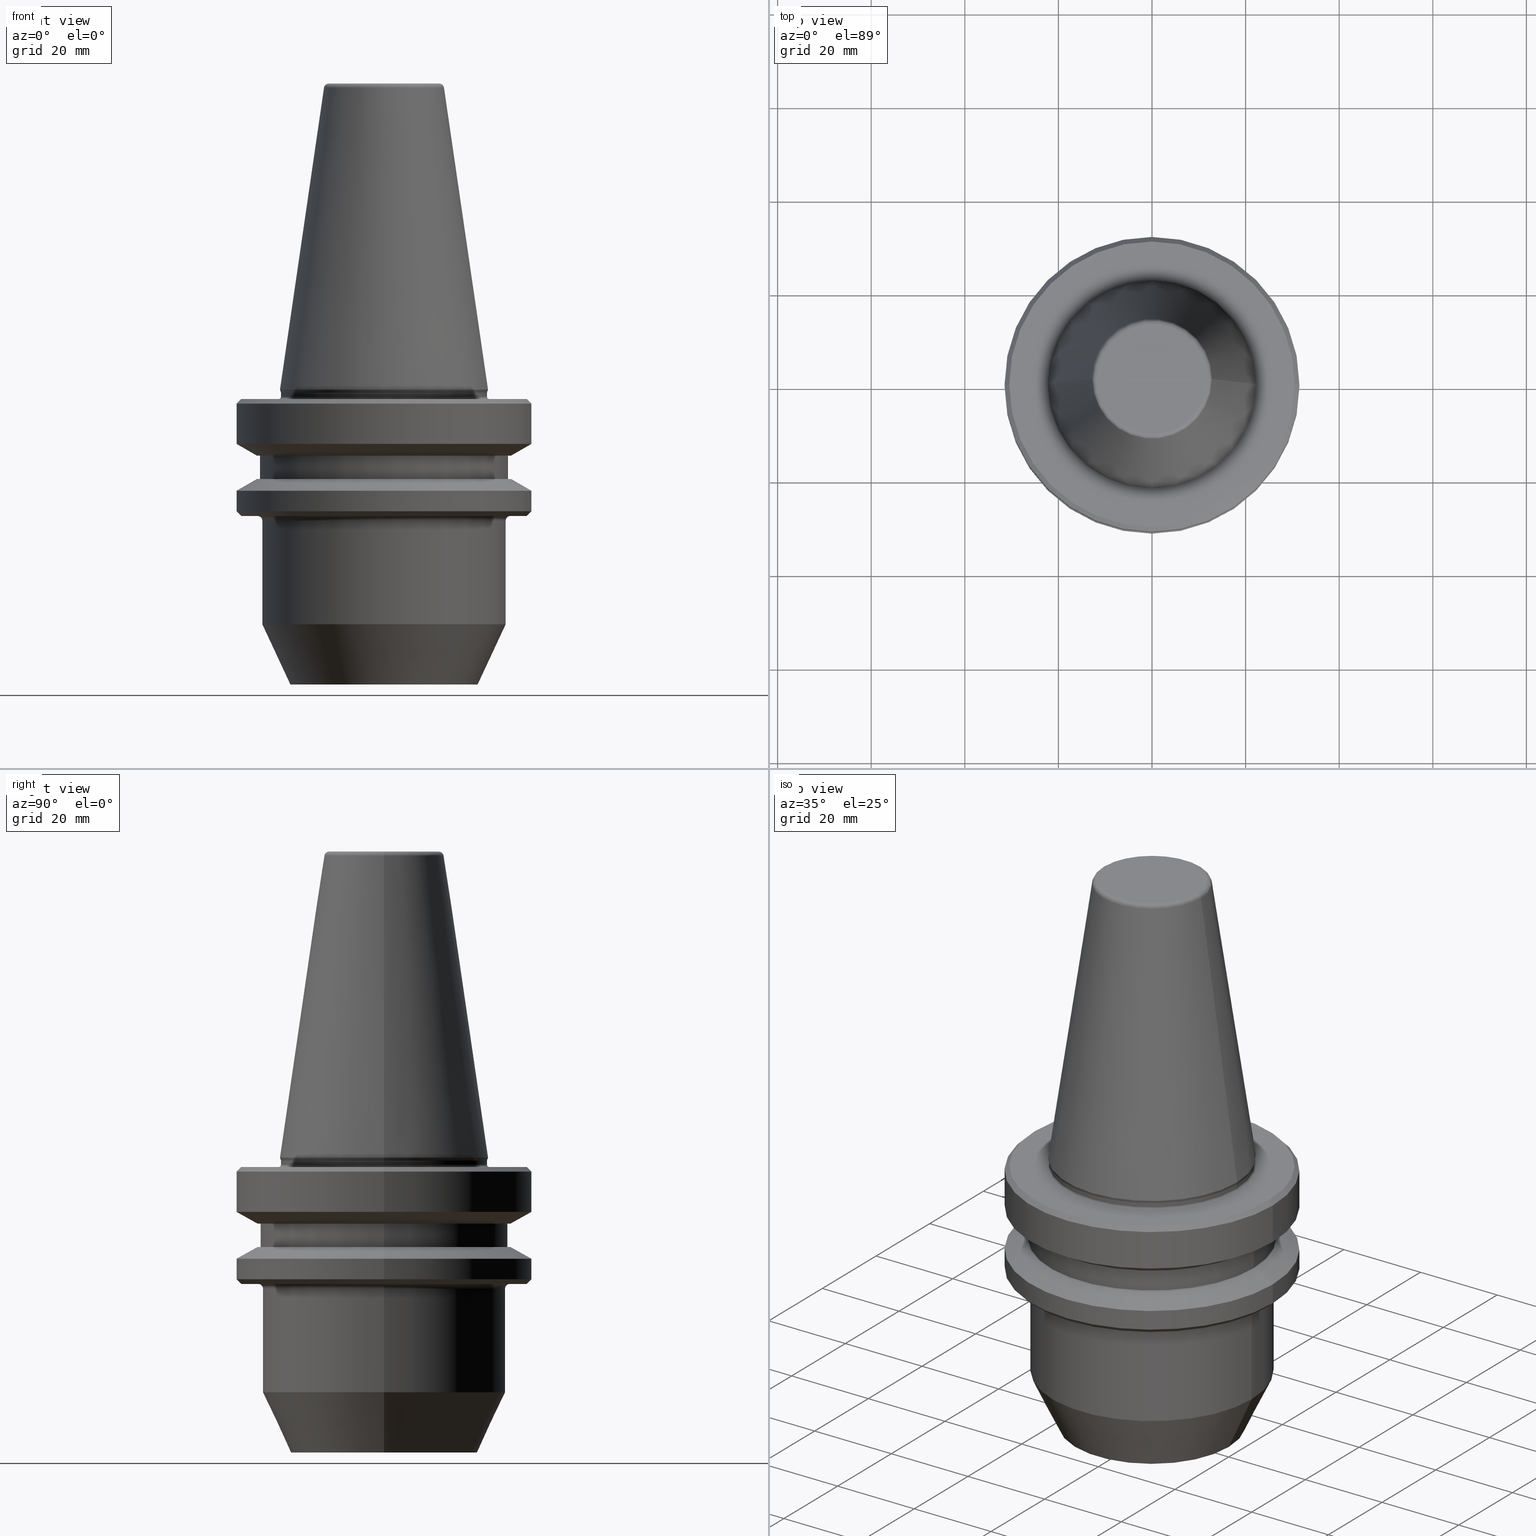
[diagram: canonical four-view strip — front | top / right | iso, engineering-drawing reading convention]
A machine part, canonical four-view strip (front | top / right | iso — engineering-drawing reading convention). The complete STEP part file that produces these views, byte-faithful:
ISO-10303-21;
HEADER;
FILE_DESCRIPTION (( 'STEP AP203' ),
    '1' );
FILE_NAME ('BT40 WE20 063 AD-6.3G15000 SL.STEP',
    '2019-05-22T08:59:51',
    ( '' ),
    ( '' ),
    'SwSTEP 2.0',
    'SolidWorks 2014',
    '' );
FILE_SCHEMA (( 'CONFIG_CONTROL_DESIGN' ));
ENDSEC;

DATA;
#1 = EDGE_CURVE ( 'NONE', #491, #687, #537, .T. ) ;
#2 = PERSON_AND_ORGANIZATION ( #546, #520 ) ;
#3 = AXIS2_PLACEMENT_3D ( 'NONE', #141, #232, #636 ) ;
#4 = EDGE_CURVE ( 'NONE', #70, #214, #539, .T. ) ;
#5 = DIRECTION ( 'NONE',  ( 1.000000000000000000, 0.0000000000000000000, 0.0000000000000000000 ) ) ;
#6 = ORIENTED_EDGE ( 'NONE', *, *, #63, .F. ) ;
#7 = AXIS2_PLACEMENT_3D ( 'NONE', #552, #1031, #1025 ) ;
#8 = DIRECTION ( 'NONE',  ( 1.000000000000000000, 0.0000000000000000000, 0.0000000000000000000 ) ) ;
#9 = ORIENTED_EDGE ( 'NONE', *, *, #735, .T. ) ;
#10 = CIRCLE ( 'NONE', #260, 30.49999999999997200 ) ;
#11 = ORIENTED_EDGE ( 'NONE', *, *, #407, .T. ) ;
#12 = EDGE_CURVE ( 'NONE', #1034, #577, #566, .T. ) ;
#13 = EDGE_LOOP ( 'NONE', ( #1048, #450, #892, #896 ) ) ;
#14 = CARTESIAN_POINT ( 'NONE',  ( 0.0000000000000000000, 0.0000000000000000000, -13.41128678834002700 ) ) ;
#15 = CARTESIAN_POINT ( 'NONE',  ( -30.49999999999997200, 3.796405077356805400E-015, -26.31128678844368800 ) ) ;
#16 = AXIS2_PLACEMENT_3D ( 'NONE', #876, #640, #36 ) ;
#17 = CONICAL_SURFACE ( 'NONE', #3, 30.49999999999997200, 0.7853981633974482800 ) ;
#18 = DIRECTION ( 'NONE',  ( -0.0000000000000000000, -0.0000000000000000000, 1.000000000000000000 ) ) ;
#19 = EDGE_CURVE ( 'NONE', #923, #491, #533, .T. ) ;
#20 = AXIS2_PLACEMENT_3D ( 'NONE', #244, #888, #771 ) ;
#21 = PERSON_AND_ORGANIZATION_ROLE ( 'classification_officer' ) ;
#22 = AXIS2_PLACEMENT_3D ( 'NONE', #594, #957, #530 ) ;
#23 = EDGE_LOOP ( 'NONE', ( #914, #817, #94, #574 ) ) ;
#24 = CIRCLE ( 'NONE', #323, 1.000000000000028600 ) ;
#25 = EDGE_LOOP ( 'NONE', ( #730, #528, #414, #737 ) ) ;
#26 = ORIENTED_EDGE ( 'NONE', *, *, #643, .T. ) ;
#27 = APPROVAL_STATUS ( 'not_yet_approved' ) ;
#28 = AXIS2_PLACEMENT_3D ( 'NONE', #790, #717, #944 ) ;
#29 = VECTOR ( 'NONE', #985, 1000.000000000000000 ) ;
#30 = DIRECTION ( 'NONE',  ( -0.0000000000000000000, -0.0000000000000000000, 1.000000000000000000 ) ) ;
#31 = LINE ( 'NONE', #254, #375 ) ;
#32 = EDGE_CURVE ( 'NONE', #70, #162, #549, .T. ) ;
#33 = CIRCLE ( 'NONE', #801, 27.00000000000000000 ) ;
#34 = AXIS2_PLACEMENT_3D ( 'NONE', #147, #427, #766 ) ;
#35 = CALENDAR_DATE ( 2019, 22, 5 ) ;
#36 = DIRECTION ( 'NONE',  ( 1.000000000000000000, 0.0000000000000000000, 0.0000000000000000000 ) ) ;
#37 = AXIS2_PLACEMENT_3D ( 'NONE', #495, #726, #872 ) ;
#38 = EDGE_CURVE ( 'NONE', #1003, #824, #852, .T. ) ;
#39 = PRODUCT ( 'BT40 WE20 063 AD-6.3G15000 SL', 'BT40 WE20 063 AD-6.3G15000 SL', '', ( #472 ) ) ;
#40 = AXIS2_PLACEMENT_3D ( 'NONE', #1008, #142, #812 ) ;
#41 = VECTOR ( 'NONE', #741, 1000.000000000000000 ) ;
#42 = ORIENTED_EDGE ( 'NONE', *, *, #679, .T. ) ;
#43 = CIRCLE ( 'NONE', #320, 11.82266927716801800 ) ;
#44 = CARTESIAN_POINT ( 'NONE',  ( 0.0000000000000000000, 0.0000000000000000000, -62.31128678834036100 ) ) ;
#45 = EDGE_CURVE ( 'NONE', #300, #859, #509, .T. ) ;
#46 = CARTESIAN_POINT ( 'NONE',  ( 22.49999999999985400, 0.0000000000000000000, -0.8112867883400820500 ) ) ;
#47 = DIRECTION ( 'NONE',  ( -0.8660254037844398200, 1.060575238724908400E-016, 0.4999999999999977200 ) ) ;
#48 = AXIS2_PLACEMENT_3D ( 'NONE', #718, #492, #5 ) ;
#49 = CARTESIAN_POINT ( 'NONE',  ( 0.0000000000000000000, 0.0000000000000000000, -26.31128678844368800 ) ) ;
#50 = EDGE_LOOP ( 'NONE', ( #338, #143 ) ) ;
#51 = ORIENTED_EDGE ( 'NONE', *, *, #138, .F. ) ;
#52 = CARTESIAN_POINT ( 'NONE',  ( 0.0000000000000000000, 0.0000000000000000000, -5.551115123125782700E-014 ) ) ;
#53 = CIRCLE ( 'NONE', #191, 27.16962701892278200 ) ;
#54 = ORIENTED_EDGE ( 'NONE', *, *, #547, .T. ) ;
#55 = ORIENTED_EDGE ( 'NONE', *, *, #617, .F. ) ;
#56 = EDGE_CURVE ( 'NONE', #437, #927, #1050, .T. ) ;
#57 = EDGE_LOOP ( 'NONE', ( #747, #269 ) ) ;
#58 = COORDINATED_UNIVERSAL_TIME_OFFSET ( 5, 30, .AHEAD. ) ;
#59 = AXIS2_PLACEMENT_3D ( 'NONE', #702, #349, #689 ) ;
#60 = CARTESIAN_POINT ( 'NONE',  ( -31.50000000000019500, 3.857637417314186400E-015, -20.91142879476059900 ) ) ;
#61 = EDGE_CURVE ( 'NONE', #491, #927, #958, .T. ) ;
#62 = DATE_AND_TIME ( #318, #522 ) ;
#63 = EDGE_CURVE ( 'NONE', #300, #446, #1030, .T. ) ;
#64 = DIRECTION ( 'NONE',  ( 0.0000000000000000000, -0.0000000000000000000, 1.000000000000000000 ) ) ;
#65 = AXIS2_PLACEMENT_3D ( 'NONE', #952, #149, #299 ) ;
#66 = AXIS2_PLACEMENT_3D ( 'NONE', #901, #165, #962 ) ;
#67 = ORIENTED_EDGE ( 'NONE', *, *, #19, .F. ) ;
#68 = EDGE_LOOP ( 'NONE', ( #975, #493, #857, #758 ) ) ;
#69 = EDGE_LOOP ( 'NONE', ( #820, #426, #235, #972 ) ) ;
#70 = VERTEX_POINT ( 'NONE', #754 ) ;
#71 = EDGE_CURVE ( 'NONE', #356, #577, #982, .T. ) ;
#72 = FACE_BOUND ( 'NONE', #326, .T. ) ;
#73 = ORIENTED_EDGE ( 'NONE', *, *, #366, .F. ) ;
#74 = DIRECTION ( 'NONE',  ( -1.000000000000000000, 0.0000000000000000000, -0.0000000000000000000 ) ) ;
#75 = EDGE_CURVE ( 'NONE', #824, #595, #947, .T. ) ;
#76 = CARTESIAN_POINT ( 'NONE',  ( 0.0000000000000000000, 0.0000000000000000000, 0.6887132116596417200 ) ) ;
#77 = CARTESIAN_POINT ( 'NONE',  ( 0.0000000000000000000, 0.0000000000000000000, -13.41128678834002700 ) ) ;
#78 = AXIS2_PLACEMENT_3D ( 'NONE', #247, #999, #856 ) ;
#79 = CARTESIAN_POINT ( 'NONE',  ( 0.0000000000000000000, 0.0000000000000000000, -20.91142879476059900 ) ) ;
#80 = AXIS2_PLACEMENT_3D ( 'NONE', #458, #778, #534 ) ;
#81 = EDGE_LOOP ( 'NONE', ( #435, #11, #328, #209 ) ) ;
#82 = DIRECTION ( 'NONE',  ( -0.0000000000000000000, -0.0000000000000000000, 1.000000000000000000 ) ) ;
#83 = LINE ( 'NONE', #909, #404 ) ;
#84 = ORIENTED_EDGE ( 'NONE', *, *, #481, .T. ) ;
#85 = DIRECTION ( 'NONE',  ( -0.0000000000000000000, -0.0000000000000000000, 1.000000000000000000 ) ) ;
#86 = FACE_OUTER_BOUND ( 'NONE', #196, .T. ) ;
#87 = EDGE_CURVE ( 'NONE', #927, #708, #932, .T. ) ;
#88 = CIRCLE ( 'NONE', #399, 26.00000000000000000 ) ;
#89 = EDGE_CURVE ( 'NONE', #945, #915, #967, .T. ) ;
#90 = DIRECTION ( 'NONE',  ( 1.000000000000000000, 0.0000000000000000000, 0.0000000000000000000 ) ) ;
#91 = LOCAL_TIME ( 14, 29, 51.00000000000000000, #58 ) ;
#92 = AXIS2_PLACEMENT_3D ( 'NONE', #954, #341, #8 ) ;
#93 = AXIS2_PLACEMENT_3D ( 'NONE', #706, #82, #442 ) ;
#94 = ORIENTED_EDGE ( 'NONE', *, *, #853, .T. ) ;
#95 = ORIENTED_EDGE ( 'NONE', *, *, #128, .F. ) ;
#96 = EDGE_CURVE ( 'NONE', #768, #923, #905, .T. ) ;
#97 = DIRECTION ( 'NONE',  ( -0.0000000000000000000, -0.0000000000000000000, 1.000000000000000000 ) ) ;
#98 = FACE_OUTER_BOUND ( 'NONE', #994, .T. ) ;
#99 = ORIENTED_EDGE ( 'NONE', *, *, #444, .F. ) ;
#100 = DIRECTION ( 'NONE',  ( 0.0000000000000000000, 0.0000000000000000000, -1.000000000000000000 ) ) ;
#101 = EDGE_CURVE ( 'NONE', #595, #214, #882, .T. ) ;
#102 = CARTESIAN_POINT ( 'NONE',  ( 0.0000000000000000000, 0.0000000000000000000, -62.31128678834036100 ) ) ;
#103 = AXIS2_PLACEMENT_3D ( 'NONE', #545, #416, #591 ) ;
#104 = DIRECTION ( 'NONE',  ( 1.000000000000000000, 0.0000000000000000000, 0.0000000000000000000 ) ) ;
#105 = AXIS2_PLACEMENT_3D ( 'NONE', #423, #363, #567 ) ;
#106 = EDGE_CURVE ( 'NONE', #1013, #446, #867, .T. ) ;
#107 = EDGE_LOOP ( 'NONE', ( #1027, #800, #531, #372 ) ) ;
#108 = DATE_AND_TIME ( #782, #91 ) ;
#109 = EDGE_CURVE ( 'NONE', #878, #686, #895, .T. ) ;
#110 = CARTESIAN_POINT ( 'NONE',  ( -31.49999999999986100, 3.857637417314145300E-015, 82.74845858742440900 ) ) ;
#111 = ORIENTED_EDGE ( 'NONE', *, *, #398, .T. ) ;
#112 = EDGE_LOOP ( 'NONE', ( #633, #1006, #461, #490 ) ) ;
#113 = AXIS2_PLACEMENT_3D ( 'NONE', #277, #486, #742 ) ;
#114 = CIRCLE ( 'NONE', #219, 1.000000000000000900 ) ;
#115 = CARTESIAN_POINT ( 'NONE',  ( 0.0000000000000000000, 0.0000000000000000000, -0.8112867883400820500 ) ) ;
#116 = ORIENTED_EDGE ( 'NONE', *, *, #500, .F. ) ;
#117 = AXIS2_PLACEMENT_3D ( 'NONE', #187, #665, #513 ) ;
#118 = PERSON_AND_ORGANIZATION_ROLE ( 'design_supplier' ) ;
#119 = AXIS2_PLACEMENT_3D ( 'NONE', #473, #734, #319 ) ;
#120 = CARTESIAN_POINT ( 'NONE',  ( 0.0000000000000000000, 0.0000000000000000000, -0.8112867883400820500 ) ) ;
#121 = ORIENTED_EDGE ( 'NONE', *, *, #400, .F. ) ;
#122 = CARTESIAN_POINT ( 'NONE',  ( 12.81220206925713600, 0.0000000000000000000, 65.23302140054848100 ) ) ;
#123 = EDGE_CURVE ( 'NONE', #471, #878, #865, .T. ) ;
#124 = EDGE_LOOP ( 'NONE', ( #1024, #239, #757, #683 ) ) ;
#125 = CARTESIAN_POINT ( 'NONE',  ( -27.16962701892167300, 0.0000000000000000000, -18.41128678844344800 ) ) ;
#126 = PLANE ( 'NONE',  #206 ) ;
#127 = ORIENTED_EDGE ( 'NONE', *, *, #488, .F. ) ;
#128 = EDGE_CURVE ( 'NONE', #437, #548, #1004, .T. ) ;
#129 = FACE_BOUND ( 'NONE', #180, .T. ) ;
#130 = VERTEX_POINT ( 'NONE', #1045 ) ;
#131 = AXIS2_PLACEMENT_3D ( 'NONE', #120, #938, #177 ) ;
#132 = CIRCLE ( 'NONE', #306, 21.99999999999979700 ) ;
#133 = DIRECTION ( 'NONE',  ( 1.000000000000000000, 0.0000000000000000000, 0.0000000000000000000 ) ) ;
#134 = AXIS2_PLACEMENT_3D ( 'NONE', #329, #570, #661 ) ;
#135 = EDGE_CURVE ( 'NONE', #1003, #990, #24, .T. ) ;
#136 = FACE_OUTER_BOUND ( 'NONE', #406, .T. ) ;
#137 = DIRECTION ( 'NONE',  ( -0.0000000000000000000, -0.0000000000000000000, 1.000000000000000000 ) ) ;
#138 = EDGE_CURVE ( 'NONE', #548, #708, #392, .T. ) ;
#139 = DIRECTION ( 'NONE',  ( -0.0000000000000000000, -0.0000000000000000000, 1.000000000000000000 ) ) ;
#140 = SECURITY_CLASSIFICATION ( '', '', #608 ) ;
#141 = CARTESIAN_POINT ( 'NONE',  ( 0.0000000000000000000, 0.0000000000000000000, -26.31128678844368800 ) ) ;
#142 = DIRECTION ( 'NONE',  ( -0.0000000000000000000, -0.0000000000000000000, 1.000000000000000000 ) ) ;
#143 = ORIENTED_EDGE ( 'NONE', *, *, #496, .F. ) ;
#144 = AXIS2_PLACEMENT_3D ( 'NONE', #1041, #182, #368 ) ;
#145 = CIRCLE ( 'NONE', #119, 27.00000000000000000 ) ;
#146 = ORIENTED_EDGE ( 'NONE', *, *, #1, .T. ) ;
#147 = CARTESIAN_POINT ( 'NONE',  ( 0.0000000000000000000, 0.0000000000000000000, -0.8112867883400820500 ) ) ;
#148 = AXIS2_PLACEMENT_3D ( 'NONE', #656, #173, #585 ) ;
#149 = DIRECTION ( 'NONE',  ( -0.0000000000000000000, -0.0000000000000000000, 1.000000000000000000 ) ) ;
#150 = ORIENTED_EDGE ( 'NONE', *, *, #407, .F. ) ;
#151 = VECTOR ( 'NONE', #467, 1000.000000000000100 ) ;
#152 = DIRECTION ( 'NONE',  ( -0.0000000000000000000, -0.0000000000000000000, 1.000000000000000000 ) ) ;
#153 = AXIS2_PLACEMENT_3D ( 'NONE', #52, #1017, #560 ) ;
#154 = LINE ( 'NONE', #807, #837 ) ;
#155 = AXIS2_PLACEMENT_3D ( 'NONE', #79, #890, #133 ) ;
#156 = DIRECTION ( 'NONE',  ( -0.0000000000000000000, -0.0000000000000000000, 1.000000000000000000 ) ) ;
#157 = DIRECTION ( 'NONE',  ( -0.0000000000000000000, -0.0000000000000000000, 1.000000000000000000 ) ) ;
#158 = EDGE_CURVE ( 'NONE', #130, #990, #43, .T. ) ;
#159 = CARTESIAN_POINT ( 'NONE',  ( 31.49999999999986100, 0.0000000000000000000, -2.311286788340083400 ) ) ;
#160 = EDGE_CURVE ( 'NONE', #824, #1003, #772, .T. ) ;
#161 = CARTESIAN_POINT ( 'NONE',  ( -22.49999999999985400, 2.755455298081526600E-015, -1.311286788340096300 ) ) ;
#162 = VERTEX_POINT ( 'NONE', #336 ) ;
#163 = ORIENTED_EDGE ( 'NONE', *, *, #71, .F. ) ;
#164 = AXIS2_PLACEMENT_3D ( 'NONE', #930, #380, #227 ) ;
#165 = DIRECTION ( 'NONE',  ( -0.0000000000000000000, -0.0000000000000000000, 1.000000000000000000 ) ) ;
#166 = FACE_OUTER_BOUND ( 'NONE', #107, .T. ) ;
#167 = CIRCLE ( 'NONE', #117, 1.000000000000028600 ) ;
#168 = AXIS2_PLACEMENT_3D ( 'NONE', #521, #439, #980 ) ;
#169 = VECTOR ( 'NONE', #861, 1000.000000000000000 ) ;
#170 = AXIS2_PLACEMENT_3D ( 'NONE', #802, #979, #487 ) ;
#171 = LINE ( 'NONE', #794, #270 ) ;
#172 = AXIS2_PLACEMENT_3D ( 'NONE', #389, #408, #753 ) ;
#173 = DIRECTION ( 'NONE',  ( -0.0000000000000000000, -0.0000000000000000000, 1.000000000000000000 ) ) ;
#174 = AXIS2_PLACEMENT_3D ( 'NONE', #598, #296, #464 ) ;
#175 = CARTESIAN_POINT ( 'NONE',  ( 31.50000000000019500, 0.0000000000000000000, -25.31128678844346400 ) ) ;
#176 = AXIS2_PLACEMENT_3D ( 'NONE', #422, #750, #74 ) ;
#177 = DIRECTION ( 'NONE',  ( 1.000000000000000000, 0.0000000000000000000, 0.0000000000000000000 ) ) ;
#178 = AXIS2_PLACEMENT_3D ( 'NONE', #351, #186, #813 ) ;
#179 = VECTOR ( 'NONE', #438, 1000.000000000000000 ) ;
#180 = EDGE_LOOP ( 'NONE', ( #325, #116 ) ) ;
#181 = FACE_OUTER_BOUND ( 'NONE', #124, .T. ) ;
#182 = DIRECTION ( 'NONE',  ( -0.0000000000000000000, -0.0000000000000000000, 1.000000000000000000 ) ) ;
#183 = CONICAL_SURFACE ( 'NONE', #228, 31.49999999999986100, 0.7853981633974482800 ) ;
#184 = FACE_BOUND ( 'NONE', #305, .T. ) ;
#185 = AXIS2_PLACEMENT_3D ( 'NONE', #899, #250, #499 ) ;
#186 = DIRECTION ( 'NONE',  ( -0.0000000000000000000, -0.0000000000000000000, 1.000000000000000000 ) ) ;
#187 = CARTESIAN_POINT ( 'NONE',  ( -11.82266927716790800, 1.447859408766143000E-015, 65.08871321166032000 ) ) ;
#188 = CONICAL_SURFACE ( 'NONE', #80, 22.02412295168547700, 0.3490658503993923600 ) ;
#189 = DIRECTION ( 'NONE',  ( 1.224646799147353200E-016, 1.000000000000000000, 0.0000000000000000000 ) ) ;
#190 = DIRECTION ( 'NONE',  ( 0.8660254037844398200, 0.0000000000000000000, 0.4999999999999977200 ) ) ;
#191 = AXIS2_PLACEMENT_3D ( 'NONE', #732, #30, #573 ) ;
#192 = CARTESIAN_POINT ( 'NONE',  ( -31.50000000000019500, 0.0000000000000000000, -20.91142879476059900 ) ) ;
#193 = ORIENTED_EDGE ( 'NONE', *, *, #4, .T. ) ;
#194 = LINE ( 'NONE', #924, #447 ) ;
#195 = CARTESIAN_POINT ( 'NONE',  ( -27.00000000000000000, 3.306546357697854100E-015, -26.31128678844368800 ) ) ;
#196 = EDGE_LOOP ( 'NONE', ( #713, #212 ) ) ;
#197 = EDGE_LOOP ( 'NONE', ( #614, #694, #799, #672 ) ) ;
#198 = APPROVAL_DATE_TIME ( #108, #929 ) ;
#199 = AXIS2_PLACEMENT_3D ( 'NONE', #666, #834, #1033 ) ;
#200 = ORIENTED_EDGE ( 'NONE', *, *, #128, .T. ) ;
#201 = LINE ( 'NONE', #658, #255 ) ;
#202 = AXIS2_PLACEMENT_3D ( 'NONE', #322, #410, #948 ) ;
#203 = AXIS2_PLACEMENT_3D ( 'NONE', #1010, #1049, #823 ) ;
#204 = ADVANCED_FACE ( 'NONE', ( #129, #843 ), #971, .F. ) ;
#205 = FACE_OUTER_BOUND ( 'NONE', #720, .T. ) ;
#206 = AXIS2_PLACEMENT_3D ( 'NONE', #685, #64, #353 ) ;
#207 = EDGE_LOOP ( 'NONE', ( #746, #966, #518, #527 ) ) ;
#208 = AXIS2_PLACEMENT_3D ( 'NONE', #308, #871, #733 ) ;
#209 = ORIENTED_EDGE ( 'NONE', *, *, #445, .F. ) ;
#210 = DIRECTION ( 'NONE',  ( 1.000000000000000000, 0.0000000000000000000, 0.0000000000000000000 ) ) ;
#211 = LINE ( 'NONE', #540, #169 ) ;
#212 = ORIENTED_EDGE ( 'NONE', *, *, #96, .F. ) ;
#213 = ORIENTED_EDGE ( 'NONE', *, *, #364, .T. ) ;
#214 = VERTEX_POINT ( 'NONE', #1047 ) ;
#215 = CARTESIAN_POINT ( 'NONE',  ( 0.0000000000000000000, 0.0000000000000000000, -62.31128678834036100 ) ) ;
#216 = APPROVAL_ROLE ( '' ) ;
#217 = DIRECTION ( 'NONE',  ( 0.0000000000000000000, 0.0000000000000000000, -1.000000000000000000 ) ) ;
#218 = EDGE_LOOP ( 'NONE', ( #828, #939 ) ) ;
#219 = AXIS2_PLACEMENT_3D ( 'NONE', #680, #705, #217 ) ;
#220 = CARTESIAN_POINT ( 'NONE',  ( 21.99999999999979700, 0.0000000000000000000, -5.551115123125782700E-014 ) ) ;
#221 = VERTEX_POINT ( 'NONE', #159 ) ;
#222 = ORIENTED_EDGE ( 'NONE', *, *, #532, .F. ) ;
#223 = EDGE_CURVE ( 'NONE', #1003, #214, #388, .T. ) ;
#224 = ORIENTED_EDGE ( 'NONE', *, *, #776, .T. ) ;
#225 = CARTESIAN_POINT ( 'NONE',  ( 22.49999999999985400, 0.0000000000000000000, -1.311286788340096300 ) ) ;
#226 = CARTESIAN_POINT ( 'NONE',  ( 27.00000000000000000, 0.0000000000000000000, -26.31128678844368800 ) ) ;
#227 = DIRECTION ( 'NONE',  ( 1.000000000000000000, 0.0000000000000000000, 0.0000000000000000000 ) ) ;
#228 = AXIS2_PLACEMENT_3D ( 'NONE', #968, #649, #632 ) ;
#229 = CIRCLE ( 'NONE', #28, 30.49999999999986100 ) ;
#230 = CARTESIAN_POINT ( 'NONE',  ( 26.50000000000007800, 0.0000000000000000000, -18.41128678844344800 ) ) ;
#231 = EDGE_CURVE ( 'NONE', #623, #382, #132, .T. ) ;
#232 = DIRECTION ( 'NONE',  ( -0.0000000000000000000, -0.0000000000000000000, 1.000000000000000000 ) ) ;
#233 = EDGE_CURVE ( 'NONE', #945, #310, #821, .T. ) ;
#234 = CARTESIAN_POINT ( 'NONE',  ( 27.16962701892278200, 0.0000000000000000000, -13.41128678834002700 ) ) ;
#235 = ORIENTED_EDGE ( 'NONE', *, *, #557, .T. ) ;
#236 = DIRECTION ( 'NONE',  ( 1.000000000000000000, 0.0000000000000000000, 0.0000000000000000000 ) ) ;
#237 = AXIS2_PLACEMENT_3D ( 'NONE', #1019, #457, #415 ) ;
#238 = DIRECTION ( 'NONE',  ( 0.0000000000000000000, 0.0000000000000000000, -1.000000000000000000 ) ) ;
#239 = ORIENTED_EDGE ( 'NONE', *, *, #96, .T. ) ;
#240 = CARTESIAN_POINT ( 'NONE',  ( 0.0000000000000000000, 0.0000000000000000000, -5.551115123125782700E-014 ) ) ;
#241 = ORIENTED_EDGE ( 'NONE', *, *, #496, .T. ) ;
#242 = ADVANCED_FACE ( 'NONE', ( #483 ), #346, .T. ) ;
#243 = EDGE_CURVE ( 'NONE', #559, #686, #827, .T. ) ;
#244 = CARTESIAN_POINT ( 'NONE',  ( 0.0000000000000000000, 20.00000000000000000, -62.31128678834037500 ) ) ;
#245 = DIRECTION ( 'NONE',  ( 1.000000000000000000, 0.0000000000000000000, 0.0000000000000000000 ) ) ;
#246 = CARTESIAN_POINT ( 'NONE',  ( -31.50000000000019500, 3.857637417314186400E-015, -25.31128678844346400 ) ) ;
#247 = CARTESIAN_POINT ( 'NONE',  ( 0.0000000000000000000, 0.0000000000000000000, -13.41128678834002700 ) ) ;
#248 = EDGE_CURVE ( 'NONE', #524, #304, #818, .T. ) ;
#249 = CIRCLE ( 'NONE', #273, 22.49999999999985400 ) ;
#250 = DIRECTION ( 'NONE',  ( -0.0000000000000000000, -0.0000000000000000000, 1.000000000000000000 ) ) ;
#251 = DIRECTION ( 'NONE',  ( 0.0000000000000000000, 0.0000000000000000000, -1.000000000000000000 ) ) ;
#252 = CIRCLE ( 'NONE', #262, 20.00000000000000000 ) ;
#253 = TOROIDAL_SURFACE ( 'NONE', #131, 22.49999999999985400, 0.5000000000000282000 ) ;
#254 = CARTESIAN_POINT ( 'NONE',  ( -30.49999999999997200, 3.735172737399423600E-015, -26.31128678844368800 ) ) ;
#255 = VECTOR ( 'NONE', #494, 1000.000000000000000 ) ;
#256 = CONICAL_SURFACE ( 'NONE', #1029, 22.22499999999971700, 0.1448138077623186700 ) ;
#257 = FACE_OUTER_BOUND ( 'NONE', #371, .T. ) ;
#258 = CONICAL_SURFACE ( 'NONE', #78, 27.16962701892278200, 1.047197551196600300 ) ;
#259 = CARTESIAN_POINT ( 'NONE',  ( 31.50000000000019500, 3.857637417314186400E-015, -20.91142879476059900 ) ) ;
#260 = AXIS2_PLACEMENT_3D ( 'NONE', #937, #784, #869 ) ;
#261 = CARTESIAN_POINT ( 'NONE',  ( -20.00000000000000000, 2.449293598294706500E-015, -62.31128678834036100 ) ) ;
#262 = AXIS2_PLACEMENT_3D ( 'NONE', #102, #684, #1011 ) ;
#263 = CARTESIAN_POINT ( 'NONE',  ( -26.50000000000007800, 3.245314017740495600E-015, 82.74845858742440900 ) ) ;
#264 = AXIS2_PLACEMENT_3D ( 'NONE', #46, #421, #631 ) ;
#265 = FACE_OUTER_BOUND ( 'NONE', #69, .T. ) ;
#266 = CONICAL_SURFACE ( 'NONE', #645, 20.00000000000000000, 0.4363323129985759400 ) ;
#267 = DIRECTION ( 'NONE',  ( 1.000000000000000000, 0.0000000000000000000, 0.0000000000000000000 ) ) ;
#268 = LINE ( 'NONE', #830, #179 ) ;
#269 = ORIENTED_EDGE ( 'NONE', *, *, #158, .T. ) ;
#270 = VECTOR ( 'NONE', #806, 1000.000000000000000 ) ;
#271 = PERSON_AND_ORGANIZATION ( #546, #520 ) ;
#272 = DIRECTION ( 'NONE',  ( -1.000000000000000000, 0.0000000000000000000, -0.0000000000000000000 ) ) ;
#273 = AXIS2_PLACEMENT_3D ( 'NONE', #791, #18, #245 ) ;
#274 = CARTESIAN_POINT ( 'NONE',  ( 0.0000000000000000000, 0.0000000000000000000, -18.41128678844344800 ) ) ;
#275 = PERSON_AND_ORGANIZATION ( #546, #520 ) ;
#276 = AXIS2_PLACEMENT_3D ( 'NONE', #1015, #553, #582 ) ;
#277 = CARTESIAN_POINT ( 'NONE',  ( 0.0000000000000000000, 0.0000000000000000000, 82.74845858742440900 ) ) ;
#278 = AXIS2_PLACEMENT_3D ( 'NONE', #644, #365, #988 ) ;
#279 = ORIENTED_EDGE ( 'NONE', *, *, #71, .T. ) ;
#280 = FACE_OUTER_BOUND ( 'NONE', #449, .T. ) ;
#281 = ORIENTED_EDGE ( 'NONE', *, *, #109, .F. ) ;
#282 = AXIS2_PLACEMENT_3D ( 'NONE', #115, #900, #919 ) ;
#283 = PLANE ( 'NONE',  #176 ) ;
#284 = EDGE_LOOP ( 'NONE', ( #99, #241, #693, #569 ) ) ;
#285 = AXIS2_PLACEMENT_3D ( 'NONE', #215, #85, #1044 ) ;
#286 = VECTOR ( 'NONE', #47, 1000.000000000000100 ) ;
#287 = ORIENTED_EDGE ( 'NONE', *, *, #617, .T. ) ;
#288 = CARTESIAN_POINT ( 'NONE',  ( 0.0000000000000000000, 0.0000000000000000000, -13.41128678834002700 ) ) ;
#289 = AXIS2_PLACEMENT_3D ( 'NONE', #978, #588, #960 ) ;
#290 = AXIS2_PLACEMENT_3D ( 'NONE', #1032, #189, #568 ) ;
#291 = CYLINDRICAL_SURFACE ( 'NONE', #1040, 31.50000000000019500 ) ;
#292 = CYLINDRICAL_SURFACE ( 'NONE', #16, 26.00000000000000000 ) ;
#293 = LOCAL_TIME ( 14, 29, 51.00000000000000000, #498 ) ;
#294 = CC_DESIGN_APPROVAL ( #849, ( #555 ) ) ;
#295 = AXIS2_PLACEMENT_3D ( 'NONE', #288, #951, #894 ) ;
#296 = DIRECTION ( 'NONE',  ( 1.224646799147353200E-016, 1.000000000000000000, 0.0000000000000000000 ) ) ;
#297 = AXIS2_PLACEMENT_3D ( 'NONE', #14, #599, #104 ) ;
#298 = EDGE_LOOP ( 'NONE', ( #877, #609, #42, #565 ) ) ;
#299 = DIRECTION ( 'NONE',  ( 1.000000000000000000, 0.0000000000000000000, 0.0000000000000000000 ) ) ;
#300 = VERTEX_POINT ( 'NONE', #728 ) ;
#301 = FACE_OUTER_BOUND ( 'NONE', #68, .T. ) ;
#302 = AXIS2_PLACEMENT_3D ( 'NONE', #669, #1042, #976 ) ;
#303 = LINE ( 'NONE', #1007, #480 ) ;
#304 = VERTEX_POINT ( 'NONE', #881 ) ;
#305 = EDGE_LOOP ( 'NONE', ( #163, #391 ) ) ;
#306 = AXIS2_PLACEMENT_3D ( 'NONE', #810, #137, #236 ) ;
#307 = ORIENTED_EDGE ( 'NONE', *, *, #160, .F. ) ;
#308 = CARTESIAN_POINT ( 'NONE',  ( 0.0000000000000000000, 0.0000000000000000000, -10.91114478202370800 ) ) ;
#309 = APPROVAL_DATE_TIME ( #443, #849 ) ;
#310 = VERTEX_POINT ( 'NONE', #324 ) ;
#311 = EDGE_LOOP ( 'NONE', ( #508, #222, #667, #652 ) ) ;
#312 = EDGE_LOOP ( 'NONE', ( #150, #622, #587, #674 ) ) ;
#313 = DIRECTION ( 'NONE',  ( 1.000000000000000000, 0.0000000000000000000, 0.0000000000000000000 ) ) ;
#314 = DIRECTION ( 'NONE',  ( -0.7071067811865474600, 0.0000000000000000000, -0.7071067811865475700 ) ) ;
#315 = AXIS2_PLACEMENT_3D ( 'NONE', #510, #584, #436 ) ;
#316 =( NAMED_UNIT ( * ) PLANE_ANGLE_UNIT ( ) SI_UNIT ( $, .RADIAN. ) );
#317 = DIRECTION ( 'NONE',  ( 1.224646799147353200E-016, 1.000000000000000000, 0.0000000000000000000 ) ) ;
#318 = CALENDAR_DATE ( 2019, 22, 5 ) ;
#319 = DIRECTION ( 'NONE',  ( 1.000000000000000000, 0.0000000000000000000, 0.0000000000000000000 ) ) ;
#320 = AXIS2_PLACEMENT_3D ( 'NONE', #664, #370, #378 ) ;
#321 = CARTESIAN_POINT ( 'NONE',  ( -21.99999999999982600, 2.724839128102840900E-015, -0.8112867883400820500 ) ) ;
#322 = CARTESIAN_POINT ( 'NONE',  ( 0.0000000000000000000, 0.0000000000000000000, -0.8112867883400820500 ) ) ;
#323 = AXIS2_PLACEMENT_3D ( 'NONE', #961, #751, #251 ) ;
#324 = CARTESIAN_POINT ( 'NONE',  ( -27.16962701892278200, 3.592478546794634700E-015, -13.41128678834002700 ) ) ;
#325 = ORIENTED_EDGE ( 'NONE', *, *, #377, .F. ) ;
#326 = EDGE_LOOP ( 'NONE', ( #287, #224 ) ) ;
#327 = AXIS2_PLACEMENT_3D ( 'NONE', #274, #829, #511 ) ;
#328 = ORIENTED_EDGE ( 'NONE', *, *, #231, .F. ) ;
#329 = CARTESIAN_POINT ( 'NONE',  ( 0.0000000000000000000, 0.0000000000000000000, 0.6887132116596417200 ) ) ;
#330 = LINE ( 'NONE', #402, #286 ) ;
#331 = CIRCLE ( 'NONE', #278, 22.02412295168547700 ) ;
#332 = CARTESIAN_POINT ( 'NONE',  ( 26.00000000000000000, 0.0000000000000000000, -49.44424526528279500 ) ) ;
#333 = AXIS2_PLACEMENT_3D ( 'NONE', #77, #825, #578 ) ;
#334 = CARTESIAN_POINT ( 'NONE',  ( -22.49999999999985400, 2.755455298081526600E-015, -0.8112867883400820500 ) ) ;
#335 = DIRECTION ( 'NONE',  ( 1.000000000000000000, 0.0000000000000000000, 0.0000000000000000000 ) ) ;
#336 = CARTESIAN_POINT ( 'NONE',  ( -22.02412295168547700, 2.697177167680937400E-015, 0.1368080573304758500 ) ) ;
#337 = AXIS2_PLACEMENT_3D ( 'NONE', #76, #654, #448 ) ;
#338 = ORIENTED_EDGE ( 'NONE', *, *, #233, .F. ) ;
#339 = ORIENTED_EDGE ( 'NONE', *, *, #1, .F. ) ;
#340 = AXIS2_PLACEMENT_3D ( 'NONE', #1016, #589, #748 ) ;
#341 = DIRECTION ( 'NONE',  ( -0.0000000000000000000, -0.0000000000000000000, 1.000000000000000000 ) ) ;
#342 = CIRCLE ( 'NONE', #144, 26.00000000000000000 ) ;
#343 = CIRCLE ( 'NONE', #237, 26.50000000000007800 ) ;
#344 = AXIS2_PLACEMENT_3D ( 'NONE', #832, #911, #795 ) ;
#345 = AXIS2_PLACEMENT_3D ( 'NONE', #615, #875, #313 ) ;
#346 = CONICAL_SURFACE ( 'NONE', #295, 27.16962701892278200, 1.047197551196600300 ) ;
#347 = CARTESIAN_POINT ( 'NONE',  ( -31.49999999999986100, 0.0000000000000000000, -2.311286788340083400 ) ) ;
#348 = AXIS2_PLACEMENT_3D ( 'NONE', #920, #917, #90 ) ;
#349 = DIRECTION ( 'NONE',  ( -0.0000000000000000000, -0.0000000000000000000, 1.000000000000000000 ) ) ;
#350 = FACE_OUTER_BOUND ( 'NONE', #616, .T. ) ;
#351 = CARTESIAN_POINT ( 'NONE',  ( 0.0000000000000000000, 0.0000000000000000000, -62.31128678834036100 ) ) ;
#352 = AXIS2_PLACEMENT_3D ( 'NONE', #454, #986, #519 ) ;
#353 = DIRECTION ( 'NONE',  ( 1.000000000000000000, 0.0000000000000000000, 0.0000000000000000000 ) ) ;
#354 = CC_DESIGN_PERSON_AND_ORGANIZATION_ASSIGNMENT ( #826, #118, ( #989 ) ) ;
#355 = AXIS2_PLACEMENT_3D ( 'NONE', #992, #97, #918 ) ;
#356 = VERTEX_POINT ( 'NONE', #225 ) ;
#357 = AXIS2_PLACEMENT_3D ( 'NONE', #995, #762, #756 ) ;
#358 = CARTESIAN_POINT ( 'NONE',  ( -31.49999999999986100, 3.857637417314145300E-015, -2.311286788340083400 ) ) ;
#359 = FACE_OUTER_BOUND ( 'NONE', #898, .T. ) ;
#360 = AXIS2_PLACEMENT_3D ( 'NONE', #334, #317, #922 ) ;
#361 = CARTESIAN_POINT ( 'NONE',  ( 0.0000000000000000000, 0.0000000000000000000, -20.91142879476059900 ) ) ;
#362 = AXIS2_PLACEMENT_3D ( 'NONE', #1014, #152, #210 ) ;
#363 = DIRECTION ( 'NONE',  ( 0.0000000000000000000, -1.000000000000000000, 0.0000000000000000000 ) ) ;
#364 = EDGE_CURVE ( 'NONE', #221, #446, #805, .T. ) ;
#365 = DIRECTION ( 'NONE',  ( -0.0000000000000000000, -0.0000000000000000000, 1.000000000000000000 ) ) ;
#366 = EDGE_CURVE ( 'NONE', #425, #405, #373, .T. ) ;
#367 = CARTESIAN_POINT ( 'NONE',  ( 26.50000000000007800, 0.0000000000000000000, 82.74845858742440900 ) ) ;
#368 = DIRECTION ( 'NONE',  ( 1.000000000000000000, 0.0000000000000000000, 0.0000000000000000000 ) ) ;
#369 = EDGE_CURVE ( 'NONE', #405, #710, #844, .T. ) ;
#370 = DIRECTION ( 'NONE',  ( -0.0000000000000000000, -0.0000000000000000000, 1.000000000000000000 ) ) ;
#371 = EDGE_LOOP ( 'NONE', ( #699, #9, #339, #67 ) ) ;
#372 = ORIENTED_EDGE ( 'NONE', *, *, #484, .T. ) ;
#373 = CIRCLE ( 'NONE', #285, 20.00000000000000000 ) ;
#374 = PERSON_AND_ORGANIZATION ( #546, #520 ) ;
#375 = VECTOR ( 'NONE', #816, 1000.000000000000000 ) ;
#376 = FACE_OUTER_BOUND ( 'NONE', #25, .T. ) ;
#377 = EDGE_CURVE ( 'NONE', #471, #559, #343, .T. ) ;
#378 = DIRECTION ( 'NONE',  ( 1.000000000000000000, 0.0000000000000000000, 0.0000000000000000000 ) ) ;
#379 = LOCAL_TIME ( 14, 29, 51.00000000000000000, #590 ) ;
#380 = DIRECTION ( 'NONE',  ( -0.0000000000000000000, -0.0000000000000000000, 1.000000000000000000 ) ) ;
#381 = ADVANCED_FACE ( 'NONE', ( #166 ), #183, .T. ) ;
#382 = VERTEX_POINT ( 'NONE', #393 ) ;
#383 = AXIS2_PLACEMENT_3D ( 'NONE', #716, #238, #272 ) ;
#384 = ORIENTED_EDGE ( 'NONE', *, *, #523, .T. ) ;
#385 = VECTOR ( 'NONE', #580, 999.9999999999998900 ) ;
#386 = FACE_OUTER_BOUND ( 'NONE', #842, .T. ) ;
#387 = VERTEX_POINT ( 'NONE', #1022 ) ;
#388 = LINE ( 'NONE', #1023, #385 ) ;
#389 = CARTESIAN_POINT ( 'NONE',  ( 0.0000000000000000000, 0.0000000000000000000, 82.74845858742440900 ) ) ;
#390 = CARTESIAN_POINT ( 'NONE',  ( 11.82266927716801800, 0.0000000000000000000, 66.08871321166032000 ) ) ;
#391 = ORIENTED_EDGE ( 'NONE', *, *, #456, .F. ) ;
#392 = LINE ( 'NONE', #192, #786 ) ;
#393 = CARTESIAN_POINT ( 'NONE',  ( -21.99999999999979700, 2.694222958124153500E-015, -5.551115123125782700E-014 ) ) ;
#394 = PRODUCT_RELATED_PRODUCT_CATEGORY ( 'detail', '', ( #39 ) ) ;
#395 = FACE_BOUND ( 'NONE', #218, .T. ) ;
#396 = CARTESIAN_POINT ( 'NONE',  ( 0.0000000000000000000, 0.0000000000000000000, -5.551115123125782700E-014 ) ) ;
#397 = PERSON_AND_ORGANIZATION_ROLE ( 'creator' ) ;
#398 = EDGE_CURVE ( 'NONE', #915, #221, #201, .T. ) ;
#399 = AXIS2_PLACEMENT_3D ( 'NONE', #514, #907, #267 ) ;
#400 = EDGE_CURVE ( 'NONE', #1034, #433, #403, .T. ) ;
#401 = ORIENTED_EDGE ( 'NONE', *, *, #101, .F. ) ;
#402 = CARTESIAN_POINT ( 'NONE',  ( -27.16962701892278200, 3.327319676275122900E-015, -13.41128678834002700 ) ) ;
#403 = CIRCLE ( 'NONE', #282, 21.99999999999982600 ) ;
#404 = VECTOR ( 'NONE', #974, 1000.000000000000000 ) ;
#405 = VERTEX_POINT ( 'NONE', #455 ) ;
#406 = EDGE_LOOP ( 'NONE', ( #983, #761, #213, #6 ) ) ;
#407 = EDGE_CURVE ( 'NONE', #1034, #382, #171, .T. ) ;
#408 = DIRECTION ( 'NONE',  ( -0.0000000000000000000, -0.0000000000000000000, 1.000000000000000000 ) ) ;
#409 = DIRECTION ( 'NONE',  ( -0.0000000000000000000, -0.0000000000000000000, 1.000000000000000000 ) ) ;
#410 = DIRECTION ( 'NONE',  ( -0.0000000000000000000, -0.0000000000000000000, 1.000000000000000000 ) ) ;
#411 = DIRECTION ( 'NONE',  ( -0.0000000000000000000, -0.0000000000000000000, 1.000000000000000000 ) ) ;
#412 = EDGE_CURVE ( 'NONE', #162, #70, #331, .T. ) ;
#413 = CONICAL_SURFACE ( 'NONE', #134, 22.22499999999971700, 0.1448138077623186700 ) ;
#414 = ORIENTED_EDGE ( 'NONE', *, *, #679, .F. ) ;
#415 = DIRECTION ( 'NONE',  ( 1.000000000000000000, 0.0000000000000000000, 0.0000000000000000000 ) ) ;
#416 = DIRECTION ( 'NONE',  ( -0.0000000000000000000, -0.0000000000000000000, 1.000000000000000000 ) ) ;
#417 = ORIENTED_EDGE ( 'NONE', *, *, #767, .T. ) ;
#418 = EDGE_CURVE ( 'NONE', #906, #710, #453, .T. ) ;
#419 = DIRECTION ( 'NONE',  ( 1.000000000000000000, 0.0000000000000000000, 0.0000000000000000000 ) ) ;
#420 = CARTESIAN_POINT ( 'NONE',  ( 27.16962701892278200, 0.0000000000000000000, -13.41128678834002700 ) ) ;
#421 = DIRECTION ( 'NONE',  ( 0.0000000000000000000, -1.000000000000000000, 0.0000000000000000000 ) ) ;
#422 = CARTESIAN_POINT ( 'NONE',  ( 0.0000000000000000000, 11.82266927716801800, 66.08871321166014900 ) ) ;
#423 = CARTESIAN_POINT ( 'NONE',  ( 22.39999999999986400, 0.0000000000000000000, -5.551115123125782700E-014 ) ) ;
#424 = ORIENTED_EDGE ( 'NONE', *, *, #729, .T. ) ;
#425 = VERTEX_POINT ( 'NONE', #765 ) ;
#426 = ORIENTED_EDGE ( 'NONE', *, *, #248, .T. ) ;
#427 = DIRECTION ( 'NONE',  ( -0.0000000000000000000, -0.0000000000000000000, 1.000000000000000000 ) ) ;
#428 = ORIENTED_EDGE ( 'NONE', *, *, #61, .F. ) ;
#429 = FACE_OUTER_BOUND ( 'NONE', #463, .T. ) ;
#430 = FACE_OUTER_BOUND ( 'NONE', #311, .T. ) ;
#431 = CARTESIAN_POINT ( 'NONE',  ( 22.02412295168547700, 0.0000000000000000000, 0.1368080573304758500 ) ) ;
#432 = CARTESIAN_POINT ( 'NONE',  ( 0.0000000000000000000, 0.0000000000000000000, 82.74845858742440900 ) ) ;
#433 = VERTEX_POINT ( 'NONE', #912 ) ;
#434 = CONICAL_SURFACE ( 'NONE', #22, 31.49999999999986100, 0.7853981633974482800 ) ;
#435 = ORIENTED_EDGE ( 'NONE', *, *, #488, .T. ) ;
#436 = DIRECTION ( 'NONE',  ( 1.000000000000000000, 0.0000000000000000000, 0.0000000000000000000 ) ) ;
#437 = VERTEX_POINT ( 'NONE', #942 ) ;
#438 = DIRECTION ( 'NONE',  ( -0.0000000000000000000, -0.0000000000000000000, 1.000000000000000000 ) ) ;
#439 = DIRECTION ( 'NONE',  ( -0.0000000000000000000, -0.0000000000000000000, 1.000000000000000000 ) ) ;
#440 = ADVANCED_BREP_SHAPE_REPRESENTATION ( 'BT40 WE20 063 AD-6.3G15000 SL', ( #459, #345 ), #760 ) ;
#441 = COORDINATED_UNIVERSAL_TIME_OFFSET ( 5, 30, .AHEAD. ) ;
#442 = DIRECTION ( 'NONE',  ( 1.000000000000000000, 0.0000000000000000000, 0.0000000000000000000 ) ) ;
#443 = DATE_AND_TIME ( #889, #379 ) ;
#444 = EDGE_CURVE ( 'NONE', #310, #1013, #330, .T. ) ;
#445 = EDGE_CURVE ( 'NONE', #433, #623, #303, .T. ) ;
#446 = VERTEX_POINT ( 'NONE', #358 ) ;
#447 = VECTOR ( 'NONE', #630, 1000.000000000000000 ) ;
#448 = DIRECTION ( 'NONE',  ( 1.000000000000000000, 0.0000000000000000000, 0.0000000000000000000 ) ) ;
#449 = EDGE_LOOP ( 'NONE', ( #851, #84, #111, #502 ) ) ;
#450 = ORIENTED_EDGE ( 'NONE', *, *, #160, .T. ) ;
#451 = CALENDAR_DATE ( 2019, 22, 5 ) ;
#452 = EDGE_CURVE ( 'NONE', #859, #221, #211, .T. ) ;
#453 = CIRCLE ( 'NONE', #276, 26.00000000000000000 ) ;
#454 = CARTESIAN_POINT ( 'NONE',  ( 0.0000000000000000000, 0.0000000000000000000, -1.311286788340082500 ) ) ;
#455 = CARTESIAN_POINT ( 'NONE',  ( -20.00000000000000000, 2.816687638038912400E-015, -62.31128678834036100 ) ) ;
#456 = EDGE_CURVE ( 'NONE', #577, #356, #249, .T. ) ;
#457 = DIRECTION ( 'NONE',  ( -0.0000000000000000000, -0.0000000000000000000, 1.000000000000000000 ) ) ;
#458 = CARTESIAN_POINT ( 'NONE',  ( 0.0000000000000000000, 0.0000000000000000000, 0.1368080573304758500 ) ) ;
#459 = MANIFOLD_SOLID_BREP ( 'Revolve1', #903 ) ;
#460 = EDGE_CURVE ( 'NONE', #405, #425, #252, .T. ) ;
#461 = ORIENTED_EDGE ( 'NONE', *, *, #123, .T. ) ;
#462 = ADVANCED_FACE ( 'NONE', ( #184, #429 ), #855, .F. ) ;
#463 = EDGE_LOOP ( 'NONE', ( #838, #424 ) ) ;
#464 = DIRECTION ( 'NONE',  ( -1.000000000000000000, 1.224646799147359900E-016, 0.0000000000000000000 ) ) ;
#465 = EDGE_CURVE ( 'NONE', #710, #906, #88, .T. ) ;
#466 = CIRCLE ( 'NONE', #66, 22.22499999999971700 ) ;
#467 = DIRECTION ( 'NONE',  ( -0.4226182617406936100, 5.175581015019586700E-017, 0.9063077870366526000 ) ) ;
#468 = APPROVAL_ROLE ( '' ) ;
#469 = CARTESIAN_POINT ( 'NONE',  ( -26.50000000000007800, 3.245314017740495600E-015, -18.41128678844344800 ) ) ;
#470 = TOROIDAL_SURFACE ( 'NONE', #92, 27.00000000000000000, 1.000000000000002700 ) ;
#471 = VERTEX_POINT ( 'NONE', #230 ) ;
#472 = MECHANICAL_CONTEXT ( 'NONE', #701, 'mechanical' ) ;
#473 = CARTESIAN_POINT ( 'NONE',  ( 0.0000000000000000000, 0.0000000000000000000, -26.31128678844368800 ) ) ;
#474 = DIRECTION ( 'NONE',  ( 0.0000000000000000000, 0.0000000000000000000, -1.000000000000000000 ) ) ;
#475 = CIRCLE ( 'NONE', #264, 0.5000000000000282000 ) ;
#476 = EDGE_CURVE ( 'NONE', #1053, #387, #114, .T. ) ;
#477 = ADVANCED_FACE ( 'NONE', ( #86, #72 ), #126, .F. ) ;
#478 = DATE_TIME_ROLE ( 'creation_date' ) ;
#479 = CARTESIAN_POINT ( 'NONE',  ( -26.00000000000000000, 3.184081677783118200E-015, -49.44424526528279500 ) ) ;
#480 = VECTOR ( 'NONE', #959, 1000.000000000000000 ) ;
#481 = EDGE_CURVE ( 'NONE', #1013, #915, #709, .T. ) ;
#482 = CARTESIAN_POINT ( 'NONE',  ( 30.49999999999997200, 0.0000000000000000000, -26.31128678844368800 ) ) ;
#483 = FACE_OUTER_BOUND ( 'NONE', #284, .T. ) ;
#484 = EDGE_CURVE ( 'NONE', #446, #221, #1052, .T. ) ;
#485 = FACE_OUTER_BOUND ( 'NONE', #50, .T. ) ;
#486 = DIRECTION ( 'NONE',  ( -0.0000000000000000000, -0.0000000000000000000, 1.000000000000000000 ) ) ;
#487 = DIRECTION ( 'NONE',  ( -1.000000000000000000, 0.0000000000000000000, 0.0000000000000000000 ) ) ;
#488 = EDGE_CURVE ( 'NONE', #433, #1034, #933, .T. ) ;
#489 = EDGE_CURVE ( 'NONE', #686, #878, #943, .T. ) ;
#490 = ORIENTED_EDGE ( 'NONE', *, *, #489, .F. ) ;
#491 = VERTEX_POINT ( 'NONE', #175 ) ;
#492 = DIRECTION ( 'NONE',  ( -0.0000000000000000000, -0.0000000000000000000, 1.000000000000000000 ) ) ;
#493 = ORIENTED_EDGE ( 'NONE', *, *, #612, .T. ) ;
#494 = DIRECTION ( 'NONE',  ( -0.0000000000000000000, -0.0000000000000000000, 1.000000000000000000 ) ) ;
#495 = CARTESIAN_POINT ( 'NONE',  ( 0.0000000000000000000, 0.0000000000000000000, 82.74845858742440900 ) ) ;
#496 = EDGE_CURVE ( 'NONE', #310, #945, #53, .T. ) ;
#497 = FACE_OUTER_BOUND ( 'NONE', #670, .T. ) ;
#498 = COORDINATED_UNIVERSAL_TIME_OFFSET ( 5, 30, .AHEAD. ) ;
#499 = DIRECTION ( 'NONE',  ( 1.000000000000000000, 0.0000000000000000000, 0.0000000000000000000 ) ) ;
#500 = EDGE_CURVE ( 'NONE', #559, #471, #634, .T. ) ;
#501 = ADVANCED_FACE ( 'NONE', ( #613 ), #283, .F. ) ;
#502 = ORIENTED_EDGE ( 'NONE', *, *, #484, .F. ) ;
#503 = ADVANCED_FACE ( 'NONE', ( #653 ), #1005, .T. ) ;
#504 = PLANE ( 'NONE',  #581 ) ;
#505 = ORIENTED_EDGE ( 'NONE', *, *, #101, .T. ) ;
#506 = CARTESIAN_POINT ( 'NONE',  ( 31.50000000000019500, 0.0000000000000000000, 82.74845858742440900 ) ) ;
#507 = VECTOR ( 'NONE', #926, 1000.000000000000000 ) ;
#508 = ORIENTED_EDGE ( 'NONE', *, *, #56, .F. ) ;
#509 = CIRCLE ( 'NONE', #352, 30.49999999999986100 ) ;
#510 = CARTESIAN_POINT ( 'NONE',  ( 0.0000000000000000000, 0.0000000000000000000, 65.23302140054848100 ) ) ;
#511 = DIRECTION ( 'NONE',  ( 1.000000000000000000, 0.0000000000000000000, 0.0000000000000000000 ) ) ;
#512 = ORIENTED_EDGE ( 'NONE', *, *, #366, .T. ) ;
#513 = DIRECTION ( 'NONE',  ( -1.000000000000000000, 1.224646799147353900E-016, 0.0000000000000000000 ) ) ;
#514 = CARTESIAN_POINT ( 'NONE',  ( 0.0000000000000000000, 0.0000000000000000000, -49.44424526528279500 ) ) ;
#515 = ORIENTED_EDGE ( 'NONE', *, *, #532, .T. ) ;
#516 = EDGE_CURVE ( 'NONE', #162, #382, #575, .T. ) ;
#517 = ADVANCED_FACE ( 'NONE', ( #98 ), #727, .T. ) ;
#518 = ORIENTED_EDGE ( 'NONE', *, *, #364, .F. ) ;
#519 = DIRECTION ( 'NONE',  ( 1.000000000000000000, 0.0000000000000000000, 0.0000000000000000000 ) ) ;
#520 = ORGANIZATION ( 'UNSPECIFIED', 'UNSPECIFIED', '' ) ;
#521 = CARTESIAN_POINT ( 'NONE',  ( 0.0000000000000000000, 0.0000000000000000000, -25.31128678844346400 ) ) ;
#522 = LOCAL_TIME ( 14, 29, 51.00000000000000000, #736 ) ;
#523 = EDGE_CURVE ( 'NONE', #687, #491, #695, .T. ) ;
#524 = VERTEX_POINT ( 'NONE', #195 ) ;
#525 = CARTESIAN_POINT ( 'NONE',  ( 0.0000000000000000000, 26.50000000000007800, -13.41128678834002700 ) ) ;
#526 = FACE_OUTER_BOUND ( 'NONE', #23, .T. ) ;
#527 = ORIENTED_EDGE ( 'NONE', *, *, #398, .F. ) ;
#528 = ORIENTED_EDGE ( 'NONE', *, *, #562, .T. ) ;
#529 = ORIENTED_EDGE ( 'NONE', *, *, #780, .T. ) ;
#530 = DIRECTION ( 'NONE',  ( -1.000000000000000000, 0.0000000000000000000, 0.0000000000000000000 ) ) ;
#531 = ORIENTED_EDGE ( 'NONE', *, *, #63, .T. ) ;
#532 = EDGE_CURVE ( 'NONE', #548, #437, #651, .T. ) ;
#533 = LINE ( 'NONE', #887, #862 ) ;
#534 = DIRECTION ( 'NONE',  ( 1.000000000000000000, 0.0000000000000000000, 0.0000000000000000000 ) ) ;
#535 = ORIENTED_EDGE ( 'NONE', *, *, #543, .F. ) ;
#536 = DATE_TIME_ROLE ( 'classification_date' ) ;
#537 = CIRCLE ( 'NONE', #362, 31.50000000000019500 ) ;
#538 = SHAPE_DEFINITION_REPRESENTATION ( #1035, #440 ) ;
#539 = LINE ( 'NONE', #431, #507 ) ;
#540 = CARTESIAN_POINT ( 'NONE',  ( 31.49999999999986100, 3.857637417314145300E-015, -2.311286788340083400 ) ) ;
#541 = TOROIDAL_SURFACE ( 'NONE', #7, 11.82266927716790800, 1.000000000000029100 ) ;
#542 = APPLICATION_CONTEXT ( 'configuration controlled 3d designs of mechanical parts and assemblies' ) ;
#543 = EDGE_CURVE ( 'NONE', #708, #927, #1051, .T. ) ;
#544 = FACE_OUTER_BOUND ( 'NONE', #797, .T. ) ;
#545 = CARTESIAN_POINT ( 'NONE',  ( 0.0000000000000000000, 0.0000000000000000000, -10.91114478202370800 ) ) ;
#546 = PERSON ( 'UNSPECIFIED', 'UNSPECIFIED', 'UNSPECIFIED', ('UNSPECIFIED'), ('UNSPECIFIED'), ('UNSPECIFIED') ) ;
#547 = EDGE_CURVE ( 'NONE', #382, #623, #1026, .T. ) ;
#548 = VERTEX_POINT ( 'NONE', #125 ) ;
#549 = CIRCLE ( 'NONE', #357, 22.02412295168547700 ) ;
#550 = CYLINDRICAL_SURFACE ( 'NONE', #93, 21.99999999999981200 ) ;
#551 = EDGE_CURVE ( 'NONE', #990, #130, #993, .T. ) ;
#552 = CARTESIAN_POINT ( 'NONE',  ( 0.0000000000000000000, 0.0000000000000000000, 65.08871321166032000 ) ) ;
#553 = DIRECTION ( 'NONE',  ( -0.0000000000000000000, -0.0000000000000000000, 1.000000000000000000 ) ) ;
#554 = DIRECTION ( 'NONE',  ( 1.000000000000000000, 0.0000000000000000000, 0.0000000000000000000 ) ) ;
#555 = PRODUCT_DEFINITION ( 'UNKNOWN', '', #989, #860 ) ;
#556 = CARTESIAN_POINT ( 'NONE',  ( 26.50000000000007800, 0.0000000000000000000, -13.41128678834002700 ) ) ;
#557 = EDGE_CURVE ( 'NONE', #304, #387, #342, .T. ) ;
#558 = CARTESIAN_POINT ( 'NONE',  ( 0.0000000000000000000, 0.0000000000000000000, 82.74845858742440900 ) ) ;
#559 = VERTEX_POINT ( 'NONE', #469 ) ;
#560 = DIRECTION ( 'NONE',  ( 1.000000000000000000, 0.0000000000000000000, 0.0000000000000000000 ) ) ;
#561 = ORIENTED_EDGE ( 'NONE', *, *, #32, .F. ) ;
#562 = EDGE_CURVE ( 'NONE', #162, #595, #83, .T. ) ;
#563 = DIRECTION ( 'NONE',  ( -0.0000000000000000000, -0.0000000000000000000, 1.000000000000000000 ) ) ;
#564 = ORIENTED_EDGE ( 'NONE', *, *, #460, .T. ) ;
#565 = ORIENTED_EDGE ( 'NONE', *, *, #75, .F. ) ;
#566 = CIRCLE ( 'NONE', #360, 0.5000000000000282000 ) ;
#567 = DIRECTION ( 'NONE',  ( 0.0000000000000000000, 0.0000000000000000000, -1.000000000000000000 ) ) ;
#568 = DIRECTION ( 'NONE',  ( -1.000000000000000000, 1.224646799147352700E-016, 0.0000000000000000000 ) ) ;
#569 = ORIENTED_EDGE ( 'NONE', *, *, #481, .F. ) ;
#570 = DIRECTION ( 'NONE',  ( 0.0000000000000000000, 0.0000000000000000000, -1.000000000000000000 ) ) ;
#571 = CC_DESIGN_DATE_AND_TIME_ASSIGNMENT ( #606, #478, ( #555 ) ) ;
#572 = CIRCLE ( 'NONE', #105, 0.4000000000001126500 ) ;
#573 = DIRECTION ( 'NONE',  ( 1.000000000000000000, 0.0000000000000000000, 0.0000000000000000000 ) ) ;
#574 = ORIENTED_EDGE ( 'NONE', *, *, #557, .F. ) ;
#575 = CIRCLE ( 'NONE', #174, 0.4000000000001120400 ) ;
#576 = EDGE_LOOP ( 'NONE', ( #604, #668, #611, #781 ) ) ;
#577 = VERTEX_POINT ( 'NONE', #161 ) ;
#578 = DIRECTION ( 'NONE',  ( 1.000000000000000000, 0.0000000000000000000, 0.0000000000000000000 ) ) ;
#579 = CC_DESIGN_PERSON_AND_ORGANIZATION_ASSIGNMENT ( #374, #697, ( #39 ) ) ;
#580 = DIRECTION ( 'NONE',  ( 0.1443081888881784800, 1.767265616126594100E-017, -0.9895327920891828800 ) ) ;
#581 = AXIS2_PLACEMENT_3D ( 'NONE', #525, #970, #833 ) ;
#582 = DIRECTION ( 'NONE',  ( 1.000000000000000000, 0.0000000000000000000, 0.0000000000000000000 ) ) ;
#583 = EDGE_LOOP ( 'NONE', ( #635, #384, #603, #535 ) ) ;
#584 = DIRECTION ( 'NONE',  ( -0.0000000000000000000, -0.0000000000000000000, 1.000000000000000000 ) ) ;
#585 = DIRECTION ( 'NONE',  ( 1.000000000000000000, 0.0000000000000000000, 0.0000000000000000000 ) ) ;
#586 = ORIENTED_EDGE ( 'NONE', *, *, #659, .T. ) ;
#587 = ORIENTED_EDGE ( 'NONE', *, *, #445, .T. ) ;
#588 = DIRECTION ( 'NONE',  ( -0.0000000000000000000, -0.0000000000000000000, 1.000000000000000000 ) ) ;
#589 = DIRECTION ( 'NONE',  ( -0.0000000000000000000, -0.0000000000000000000, 1.000000000000000000 ) ) ;
#590 = COORDINATED_UNIVERSAL_TIME_OFFSET ( 5, 30, .AHEAD. ) ;
#591 = DIRECTION ( 'NONE',  ( 1.000000000000000000, 0.0000000000000000000, 0.0000000000000000000 ) ) ;
#592 = DIRECTION ( 'NONE',  ( -0.1443081888881784800, 0.0000000000000000000, -0.9895327920891828800 ) ) ;
#593 = EDGE_LOOP ( 'NONE', ( #121, #745, #738, #715 ) ) ;
#594 = CARTESIAN_POINT ( 'NONE',  ( 0.0000000000000000000, 0.0000000000000000000, -2.311286788340083400 ) ) ;
#595 = VERTEX_POINT ( 'NONE', #1002 ) ;
#596 = ADVANCED_FACE ( 'NONE', ( #963 ), #253, .F. ) ;
#597 = CARTESIAN_POINT ( 'NONE',  ( 31.50000000000019500, 0.0000000000000000000, -20.91142879476059900 ) ) ;
#598 = CARTESIAN_POINT ( 'NONE',  ( -22.39999999999986400, 2.743208830090054500E-015, -5.551115123125782700E-014 ) ) ;
#599 = DIRECTION ( 'NONE',  ( -0.0000000000000000000, -0.0000000000000000000, 1.000000000000000000 ) ) ;
#600 = EDGE_CURVE ( 'NONE', #710, #304, #268, .T. ) ;
#601 = ADVANCED_FACE ( 'NONE', ( #386 ), #413, .T. ) ;
#602 = FACE_OUTER_BOUND ( 'NONE', #769, .T. ) ;
#603 = ORIENTED_EDGE ( 'NONE', *, *, #61, .T. ) ;
#604 = ORIENTED_EDGE ( 'NONE', *, *, #418, .T. ) ;
#605 = EDGE_LOOP ( 'NONE', ( #95, #941, #815, #51 ) ) ;
#606 = DATE_AND_TIME ( #451, #700 ) ;
#607 = ADVANCED_FACE ( 'NONE', ( #359 ), #1038, .T. ) ;
#608 = SECURITY_CLASSIFICATION_LEVEL ( 'unclassified' ) ;
#609 = ORIENTED_EDGE ( 'NONE', *, *, #223, .T. ) ;
#610 = APPLICATION_PROTOCOL_DEFINITION ( 'international standard', 'config_control_design', 1994, #542 ) ;
#611 = ORIENTED_EDGE ( 'NONE', *, *, #659, .F. ) ;
#612 = EDGE_CURVE ( 'NONE', #824, #130, #167, .T. ) ;
#613 = FACE_OUTER_BOUND ( 'NONE', #57, .T. ) ;
#614 = ORIENTED_EDGE ( 'NONE', *, *, #233, .T. ) ;
#615 = CARTESIAN_POINT ( 'NONE',  ( 0.0000000000000000000, 0.0000000000000000000, 0.0000000000000000000 ) ) ;
#616 = EDGE_LOOP ( 'NONE', ( #637, #925, #281, #893 ) ) ;
#617 = EDGE_CURVE ( 'NONE', #1053, #524, #145, .T. ) ;
#618 = ADVANCED_FACE ( 'NONE', ( #698 ), #550, .T. ) ;
#619 = DIRECTION ( 'NONE',  ( -1.000000000000000000, 0.0000000000000000000, 0.0000000000000000000 ) ) ;
#620 = CC_DESIGN_PERSON_AND_ORGANIZATION_ASSIGNMENT ( #936, #21, ( #140 ) ) ;
#621 = CARTESIAN_POINT ( 'NONE',  ( 26.00000000000000000, 0.0000000000000000000, 82.74845858742440900 ) ) ;
#622 = ORIENTED_EDGE ( 'NONE', *, *, #400, .T. ) ;
#623 = VERTEX_POINT ( 'NONE', #220 ) ;
#624 = ORIENTED_EDGE ( 'NONE', *, *, #516, .F. ) ;
#625 = DIRECTION ( 'NONE',  ( -0.0000000000000000000, -0.0000000000000000000, 1.000000000000000000 ) ) ;
#626 = CC_DESIGN_DATE_AND_TIME_ASSIGNMENT ( #62, #536, ( #140 ) ) ;
#627 = CONICAL_SURFACE ( 'NONE', #874, 31.50000000000019500, 1.047197551196600500 ) ;
#628 = DIRECTION ( 'NONE',  ( 1.000000000000000000, 0.0000000000000000000, 0.0000000000000000000 ) ) ;
#629 = TOROIDAL_SURFACE ( 'NONE', #814, 22.39999999999986400, 0.4000000000001126500 ) ;
#630 = DIRECTION ( 'NONE',  ( -0.0000000000000000000, -0.0000000000000000000, 1.000000000000000000 ) ) ;
#631 = DIRECTION ( 'NONE',  ( 0.0000000000000000000, 0.0000000000000000000, -1.000000000000000000 ) ) ;
#632 = DIRECTION ( 'NONE',  ( -1.000000000000000000, 0.0000000000000000000, 0.0000000000000000000 ) ) ;
#633 = ORIENTED_EDGE ( 'NONE', *, *, #243, .F. ) ;
#634 = CIRCLE ( 'NONE', #185, 26.50000000000007800 ) ;
#635 = ORIENTED_EDGE ( 'NONE', *, *, #822, .F. ) ;
#636 = DIRECTION ( 'NONE',  ( 1.000000000000000000, 0.0000000000000000000, 0.0000000000000000000 ) ) ;
#637 = ORIENTED_EDGE ( 'NONE', *, *, #377, .T. ) ;
#638 = ORIENTED_EDGE ( 'NONE', *, *, #248, .F. ) ;
#639 = EDGE_CURVE ( 'NONE', #915, #1013, #841, .T. ) ;
#640 = DIRECTION ( 'NONE',  ( -0.0000000000000000000, -0.0000000000000000000, 1.000000000000000000 ) ) ;
#641 = FACE_OUTER_BOUND ( 'NONE', #576, .T. ) ;
#642 = ADVANCED_FACE ( 'NONE', ( #265 ), #470, .F. ) ;
#643 = EDGE_CURVE ( 'NONE', #70, #623, #572, .T. ) ;
#644 = CARTESIAN_POINT ( 'NONE',  ( 0.0000000000000000000, 0.0000000000000000000, 0.1368080573304758500 ) ) ;
#645 = AXIS2_PLACEMENT_3D ( 'NONE', #44, #139, #335 ) ;
#646 = DIRECTION ( 'NONE',  ( 0.4226182617406936100, 0.0000000000000000000, 0.9063077870366526000 ) ) ;
#647 = ADVANCED_FACE ( 'NONE', ( #526 ), #868, .T. ) ;
#648 = ORIENTED_EDGE ( 'NONE', *, *, #822, .T. ) ;
#649 = DIRECTION ( 'NONE',  ( 0.0000000000000000000, 0.0000000000000000000, -1.000000000000000000 ) ) ;
#650 = ADVANCED_FACE ( 'NONE', ( #724 ), #819, .F. ) ;
#651 = CIRCLE ( 'NONE', #164, 27.16962701892167300 ) ;
#652 = ORIENTED_EDGE ( 'NONE', *, *, #543, .T. ) ;
#653 = FACE_OUTER_BOUND ( 'NONE', #207, .T. ) ;
#654 = DIRECTION ( 'NONE',  ( -0.0000000000000000000, -0.0000000000000000000, 1.000000000000000000 ) ) ;
#655 = ORIENTED_EDGE ( 'NONE', *, *, #223, .F. ) ;
#656 = CARTESIAN_POINT ( 'NONE',  ( 0.0000000000000000000, 0.0000000000000000000, 66.08871321166032000 ) ) ;
#657 = ADVANCED_FACE ( 'NONE', ( #904 ), #740, .T. ) ;
#658 = CARTESIAN_POINT ( 'NONE',  ( 31.49999999999986100, 0.0000000000000000000, 82.74845858742440900 ) ) ;
#659 = EDGE_CURVE ( 'NONE', #387, #304, #808, .T. ) ;
#660 = DIRECTION ( 'NONE',  ( -0.8660254037844400400, 0.0000000000000000000, -0.4999999999999976100 ) ) ;
#661 = DIRECTION ( 'NONE',  ( -1.000000000000000000, 0.0000000000000000000, 0.0000000000000000000 ) ) ;
#662 = FACE_OUTER_BOUND ( 'NONE', #197, .T. ) ;
#663 = CC_DESIGN_PERSON_AND_ORGANIZATION_ASSIGNMENT ( #275, #858, ( #989 ) ) ;
#664 = CARTESIAN_POINT ( 'NONE',  ( 0.0000000000000000000, 0.0000000000000000000, 66.08871321166032000 ) ) ;
#665 = DIRECTION ( 'NONE',  ( 1.224646799147353200E-016, 1.000000000000000000, 0.0000000000000000000 ) ) ;
#666 = CARTESIAN_POINT ( 'NONE',  ( 0.0000000000000000000, 0.0000000000000000000, -13.41128678834002700 ) ) ;
#667 = ORIENTED_EDGE ( 'NONE', *, *, #138, .T. ) ;
#668 = ORIENTED_EDGE ( 'NONE', *, *, #600, .T. ) ;
#669 = CARTESIAN_POINT ( 'NONE',  ( 0.0000000000000000000, 26.50000000000007800, -18.41128678844344800 ) ) ;
#670 = EDGE_LOOP ( 'NONE', ( #712, #696, #193, #401 ) ) ;
#671 = ORIENTED_EDGE ( 'NONE', *, *, #780, .F. ) ;
#672 = ORIENTED_EDGE ( 'NONE', *, *, #89, .F. ) ;
#673 = ADVANCED_FACE ( 'NONE', ( #845 ), #854, .F. ) ;
#674 = ORIENTED_EDGE ( 'NONE', *, *, #547, .F. ) ;
#675 = CONICAL_SURFACE ( 'NONE', #764, 30.49999999999997200, 0.7853981633974482800 ) ;
#676 = CC_DESIGN_PERSON_AND_ORGANIZATION_ASSIGNMENT ( #2, #397, ( #555 ) ) ;
#677 = APPROVAL_DATE_TIME ( #902, #928 ) ;
#678 = ADVANCED_FACE ( 'NONE', ( #908 ), #541, .T. ) ;
#679 = EDGE_CURVE ( 'NONE', #214, #595, #466, .T. ) ;
#680 = CARTESIAN_POINT ( 'NONE',  ( 27.00000000000000000, 0.0000000000000000000, -27.31128678844368800 ) ) ;
#681 = AXIS2_PLACEMENT_3D ( 'NONE', #879, #950, #792 ) ;
#682 = ADVANCED_FACE ( 'NONE', ( #641 ), #292, .T. ) ;
#683 = ORIENTED_EDGE ( 'NONE', *, *, #523, .F. ) ;
#684 = DIRECTION ( 'NONE',  ( -0.0000000000000000000, -0.0000000000000000000, 1.000000000000000000 ) ) ;
#685 = CARTESIAN_POINT ( 'NONE',  ( 0.0000000000000000000, 30.49999999999997200, -26.31128678844368800 ) ) ;
#686 = VERTEX_POINT ( 'NONE', #1037 ) ;
#687 = VERTEX_POINT ( 'NONE', #246 ) ;
#688 = DIRECTION ( 'NONE',  ( 0.7071067811865474600, 0.0000000000000000000, 0.7071067811865475700 ) ) ;
#689 = DIRECTION ( 'NONE',  ( 1.000000000000000000, 0.0000000000000000000, 0.0000000000000000000 ) ) ;
#690 = ADVANCED_FACE ( 'NONE', ( #257 ), #17, .T. ) ;
#691 = ORIENTED_EDGE ( 'NONE', *, *, #476, .T. ) ;
#692 = DIRECTION ( 'NONE',  ( 1.000000000000000000, 0.0000000000000000000, 0.0000000000000000000 ) ) ;
#693 = ORIENTED_EDGE ( 'NONE', *, *, #89, .T. ) ;
#694 = ORIENTED_EDGE ( 'NONE', *, *, #444, .T. ) ;
#695 = CIRCLE ( 'NONE', #168, 31.50000000000019500 ) ;
#696 = ORIENTED_EDGE ( 'NONE', *, *, #412, .T. ) ;
#697 = PERSON_AND_ORGANIZATION_ROLE ( 'design_owner' ) ;
#698 = FACE_OUTER_BOUND ( 'NONE', #312, .T. ) ;
#699 = ORIENTED_EDGE ( 'NONE', *, *, #996, .T. ) ;
#700 = LOCAL_TIME ( 14, 29, 51.00000000000000000, #441 ) ;
#701 = APPLICATION_CONTEXT ( 'configuration controlled 3d designs of mechanical parts and assemblies' ) ;
#702 = CARTESIAN_POINT ( 'NONE',  ( 0.0000000000000000000, 0.0000000000000000000, -27.31128678844368800 ) ) ;
#703 = APPROVAL_PERSON_ORGANIZATION ( #921, #928, #468 ) ;
#704 = CARTESIAN_POINT ( 'NONE',  ( 0.0000000000000000000, 0.0000000000000000000, 0.6887132116596417200 ) ) ;
#705 = DIRECTION ( 'NONE',  ( 0.0000000000000000000, -1.000000000000000000, 0.0000000000000000000 ) ) ;
#706 = CARTESIAN_POINT ( 'NONE',  ( 0.0000000000000000000, 0.0000000000000000000, 82.74845858742440900 ) ) ;
#707 = CARTESIAN_POINT ( 'NONE',  ( 0.0000000000000000000, 0.0000000000000000000, -26.31128678844368800 ) ) ;
#708 = VERTEX_POINT ( 'NONE', #60 ) ;
#709 = CIRCLE ( 'NONE', #208, 31.49999999999986100 ) ;
#710 = VERTEX_POINT ( 'NONE', #479 ) ;
#711 = TOROIDAL_SURFACE ( 'NONE', #681, 11.82266927716790800, 1.000000000000029100 ) ;
#712 = ORIENTED_EDGE ( 'NONE', *, *, #562, .F. ) ;
#713 = ORIENTED_EDGE ( 'NONE', *, *, #996, .F. ) ;
#714 = CARTESIAN_POINT ( 'NONE',  ( 31.49999999999986100, 0.0000000000000000000, -10.91114478202370800 ) ) ;
#715 = ORIENTED_EDGE ( 'NONE', *, *, #767, .F. ) ;
#716 = CARTESIAN_POINT ( 'NONE',  ( 0.0000000000000000000, 30.49999999999986100, -1.311286788340082500 ) ) ;
#717 = DIRECTION ( 'NONE',  ( -0.0000000000000000000, -0.0000000000000000000, 1.000000000000000000 ) ) ;
#718 = CARTESIAN_POINT ( 'NONE',  ( 0.0000000000000000000, 0.0000000000000000000, 82.74845858742440900 ) ) ;
#719 = DIRECTION ( 'NONE',  ( -0.0000000000000000000, -0.0000000000000000000, 1.000000000000000000 ) ) ;
#720 = EDGE_LOOP ( 'NONE', ( #624, #561, #26, #773 ) ) ;
#721 = FACE_OUTER_BOUND ( 'NONE', #583, .T. ) ;
#722 = ORIENTED_EDGE ( 'NONE', *, *, #460, .F. ) ;
#723 = CARTESIAN_POINT ( 'NONE',  ( 0.0000000000000000000, 0.0000000000000000000, 0.1368080573304758500 ) ) ;
#724 = FACE_OUTER_BOUND ( 'NONE', #863, .T. ) ;
#725 = EDGE_LOOP ( 'NONE', ( #515, #200 ) ) ;
#726 = DIRECTION ( 'NONE',  ( -0.0000000000000000000, -0.0000000000000000000, 1.000000000000000000 ) ) ;
#727 = CONICAL_SURFACE ( 'NONE', #178, 20.00000000000000000, 0.4363323129985759400 ) ;
#728 = CARTESIAN_POINT ( 'NONE',  ( -30.49999999999986100, 0.0000000000000000000, -1.311286788340082500 ) ) ;
#729 = EDGE_CURVE ( 'NONE', #859, #300, #229, .T. ) ;
#730 = ORIENTED_EDGE ( 'NONE', *, *, #32, .T. ) ;
#731 = ORIENTED_EDGE ( 'NONE', *, *, #75, .T. ) ;
#732 = CARTESIAN_POINT ( 'NONE',  ( 0.0000000000000000000, 0.0000000000000000000, -13.41128678834002700 ) ) ;
#733 = DIRECTION ( 'NONE',  ( 1.000000000000000000, 0.0000000000000000000, 0.0000000000000000000 ) ) ;
#734 = DIRECTION ( 'NONE',  ( -0.0000000000000000000, -0.0000000000000000000, 1.000000000000000000 ) ) ;
#735 = EDGE_CURVE ( 'NONE', #768, #687, #31, .T. ) ;
#736 = COORDINATED_UNIVERSAL_TIME_OFFSET ( 5, 30, .AHEAD. ) ;
#737 = ORIENTED_EDGE ( 'NONE', *, *, #4, .F. ) ;
#738 = ORIENTED_EDGE ( 'NONE', *, *, #456, .T. ) ;
#739 = ADVANCED_FACE ( 'NONE', ( #430 ), #627, .T. ) ;
#740 = CYLINDRICAL_SURFACE ( 'NONE', #37, 26.50000000000007800 ) ;
#741 = DIRECTION ( 'NONE',  ( -0.0000000000000000000, -0.0000000000000000000, 1.000000000000000000 ) ) ;
#742 = DIRECTION ( 'NONE',  ( 1.000000000000000000, 0.0000000000000000000, 0.0000000000000000000 ) ) ;
#743 = ADVANCED_FACE ( 'NONE', ( #350 ), #1043, .T. ) ;
#744 = AXIS2_PLACEMENT_3D ( 'NONE', #558, #956, #883 ) ;
#745 = ORIENTED_EDGE ( 'NONE', *, *, #12, .T. ) ;
#746 = ORIENTED_EDGE ( 'NONE', *, *, #639, .T. ) ;
#747 = ORIENTED_EDGE ( 'NONE', *, *, #551, .T. ) ;
#748 = DIRECTION ( 'NONE',  ( 1.000000000000000000, 0.0000000000000000000, 0.0000000000000000000 ) ) ;
#749 = ORIENTED_EDGE ( 'NONE', *, *, #465, .F. ) ;
#750 = DIRECTION ( 'NONE',  ( 0.0000000000000000000, 0.0000000000000000000, -1.000000000000000000 ) ) ;
#751 = DIRECTION ( 'NONE',  ( 0.0000000000000000000, -1.000000000000000000, 0.0000000000000000000 ) ) ;
#752 = ADVANCED_FACE ( 'NONE', ( #662 ), #258, .T. ) ;
#753 = DIRECTION ( 'NONE',  ( 1.000000000000000000, 0.0000000000000000000, 0.0000000000000000000 ) ) ;
#754 = CARTESIAN_POINT ( 'NONE',  ( 22.02412295168547700, 0.0000000000000000000, 0.1368080573304758500 ) ) ;
#755 = ADVANCED_FACE ( 'NONE', ( #497 ), #188, .T. ) ;
#756 = DIRECTION ( 'NONE',  ( 1.000000000000000000, 0.0000000000000000000, 0.0000000000000000000 ) ) ;
#757 = ORIENTED_EDGE ( 'NONE', *, *, #19, .T. ) ;
#758 = ORIENTED_EDGE ( 'NONE', *, *, #135, .F. ) ;
#759 = ADVANCED_FACE ( 'NONE', ( #485, #395 ), #504, .F. ) ;
#760 =( GEOMETRIC_REPRESENTATION_CONTEXT ( 3 ) GLOBAL_UNCERTAINTY_ASSIGNED_CONTEXT ( ( #969 ) ) GLOBAL_UNIT_ASSIGNED_CONTEXT ( ( #864, #316, #779 ) ) REPRESENTATION_CONTEXT ( 'NONE', 'WORKASPACE' ) );
#761 = ORIENTED_EDGE ( 'NONE', *, *, #452, .T. ) ;
#762 = DIRECTION ( 'NONE',  ( -0.0000000000000000000, -0.0000000000000000000, 1.000000000000000000 ) ) ;
#763 = ADVANCED_FACE ( 'NONE', ( #205 ), #629, .F. ) ;
#764 = AXIS2_PLACEMENT_3D ( 'NONE', #707, #1009, #554 ) ;
#765 = CARTESIAN_POINT ( 'NONE',  ( 20.00000000000000000, 0.0000000000000000000, -62.31128678834036100 ) ) ;
#766 = DIRECTION ( 'NONE',  ( 1.000000000000000000, 0.0000000000000000000, 0.0000000000000000000 ) ) ;
#767 = EDGE_CURVE ( 'NONE', #433, #356, #475, .T. ) ;
#768 = VERTEX_POINT ( 'NONE', #15 ) ;
#769 = EDGE_LOOP ( 'NONE', ( #512, #836, #1028, #671 ) ) ;
#770 = ORIENTED_EDGE ( 'NONE', *, *, #369, .F. ) ;
#771 = DIRECTION ( 'NONE',  ( 1.000000000000000000, 0.0000000000000000000, 0.0000000000000000000 ) ) ;
#772 = CIRCLE ( 'NONE', #315, 12.81220206925715000 ) ;
#773 = ORIENTED_EDGE ( 'NONE', *, *, #231, .T. ) ;
#774 = ADVANCED_FACE ( 'NONE', ( #136 ), #434, .T. ) ;
#775 = APPROVAL_STATUS ( 'not_yet_approved' ) ;
#776 = EDGE_CURVE ( 'NONE', #524, #1053, #33, .T. ) ;
#777 = APPROVAL_PERSON_ORGANIZATION ( #998, #849, #216 ) ;
#778 = DIRECTION ( 'NONE',  ( -0.0000000000000000000, -0.0000000000000000000, 1.000000000000000000 ) ) ;
#779 =( NAMED_UNIT ( * ) SI_UNIT ( $, .STERADIAN. ) SOLID_ANGLE_UNIT ( ) );
#780 = EDGE_CURVE ( 'NONE', #425, #906, #154, .T. ) ;
#781 = ORIENTED_EDGE ( 'NONE', *, *, #853, .F. ) ;
#782 = CALENDAR_DATE ( 2019, 22, 5 ) ;
#783 = AXIS2_PLACEMENT_3D ( 'NONE', #432, #625, #891 ) ;
#784 = DIRECTION ( 'NONE',  ( -0.0000000000000000000, -0.0000000000000000000, 1.000000000000000000 ) ) ;
#785 = ORIENTED_EDGE ( 'NONE', *, *, #516, .T. ) ;
#786 = VECTOR ( 'NONE', #660, 1000.000000000000000 ) ;
#787 = AXIS2_PLACEMENT_3D ( 'NONE', #240, #411, #796 ) ;
#788 = CARTESIAN_POINT ( 'NONE',  ( 0.0000000000000000000, 0.0000000000000000000, 82.74845858742440900 ) ) ;
#789 = FACE_OUTER_BOUND ( 'NONE', #298, .T. ) ;
#790 = CARTESIAN_POINT ( 'NONE',  ( 0.0000000000000000000, 0.0000000000000000000, -1.311286788340082500 ) ) ;
#791 = CARTESIAN_POINT ( 'NONE',  ( 0.0000000000000000000, 0.0000000000000000000, -1.311286788340082500 ) ) ;
#792 = DIRECTION ( 'NONE',  ( 1.000000000000000000, 0.0000000000000000000, 0.0000000000000000000 ) ) ;
#793 = ADVANCED_FACE ( 'NONE', ( #376 ), #955, .T. ) ;
#794 = CARTESIAN_POINT ( 'NONE',  ( -21.99999999999981200, 2.694222958124154300E-015, 82.74845858742440900 ) ) ;
#795 = DIRECTION ( 'NONE',  ( 1.000000000000000000, 0.0000000000000000000, 0.0000000000000000000 ) ) ;
#796 = DIRECTION ( 'NONE',  ( 1.000000000000000000, 0.0000000000000000000, 0.0000000000000000000 ) ) ;
#797 = EDGE_LOOP ( 'NONE', ( #73, #722 ) ) ;
#798 = FACE_OUTER_BOUND ( 'NONE', #605, .T. ) ;
#799 = ORIENTED_EDGE ( 'NONE', *, *, #639, .F. ) ;
#800 = ORIENTED_EDGE ( 'NONE', *, *, #45, .F. ) ;
#801 = AXIS2_PLACEMENT_3D ( 'NONE', #49, #563, #419 ) ;
#802 = CARTESIAN_POINT ( 'NONE',  ( 0.0000000000000000000, 0.0000000000000000000, -20.91142879476059900 ) ) ;
#803 = VECTOR ( 'NONE', #719, 1000.000000000000000 ) ;
#804 = ADVANCED_FACE ( 'NONE', ( #544 ), #1021, .F. ) ;
#805 = CIRCLE ( 'NONE', #289, 31.49999999999986100 ) ;
#806 = DIRECTION ( 'NONE',  ( -0.0000000000000000000, -0.0000000000000000000, 1.000000000000000000 ) ) ;
#807 = CARTESIAN_POINT ( 'NONE',  ( 20.00000000000000000, 0.0000000000000000000, -62.31128678834036100 ) ) ;
#808 = CIRCLE ( 'NONE', #40, 26.00000000000000000 ) ;
#809 = ADVANCED_FACE ( 'NONE', ( #280 ), #973, .T. ) ;
#810 = CARTESIAN_POINT ( 'NONE',  ( 0.0000000000000000000, 0.0000000000000000000, -5.551115123125782700E-014 ) ) ;
#811 = ADVANCED_FACE ( 'NONE', ( #798 ), #981, .T. ) ;
#812 = DIRECTION ( 'NONE',  ( 1.000000000000000000, 0.0000000000000000000, 0.0000000000000000000 ) ) ;
#813 = DIRECTION ( 'NONE',  ( 1.000000000000000000, 0.0000000000000000000, 0.0000000000000000000 ) ) ;
#814 = AXIS2_PLACEMENT_3D ( 'NONE', #396, #156, #692 ) ;
#815 = ORIENTED_EDGE ( 'NONE', *, *, #87, .T. ) ;
#816 = DIRECTION ( 'NONE',  ( -0.7071067811865474600, 8.659560562354931600E-017, 0.7071067811865475700 ) ) ;
#817 = ORIENTED_EDGE ( 'NONE', *, *, #465, .T. ) ;
#818 = CIRCLE ( 'NONE', #290, 1.000000000000004400 ) ;
#819 = TOROIDAL_SURFACE ( 'NONE', #59, 27.00000000000000000, 1.000000000000002700 ) ;
#820 = ORIENTED_EDGE ( 'NONE', *, *, #776, .F. ) ;
#821 = CIRCLE ( 'NONE', #297, 27.16962701892278200 ) ;
#822 = EDGE_CURVE ( 'NONE', #687, #708, #194, .T. ) ;
#823 = DIRECTION ( 'NONE',  ( 1.000000000000000000, 0.0000000000000000000, 0.0000000000000000000 ) ) ;
#824 = VERTEX_POINT ( 'NONE', #847 ) ;
#825 = DIRECTION ( 'NONE',  ( -0.0000000000000000000, -0.0000000000000000000, 1.000000000000000000 ) ) ;
#826 = PERSON_AND_ORGANIZATION ( #546, #520 ) ;
#827 = LINE ( 'NONE', #263, #803 ) ;
#828 = ORIENTED_EDGE ( 'NONE', *, *, #109, .T. ) ;
#829 = DIRECTION ( 'NONE',  ( -0.0000000000000000000, -0.0000000000000000000, 1.000000000000000000 ) ) ;
#830 = CARTESIAN_POINT ( 'NONE',  ( -26.00000000000000000, 3.184081677783118200E-015, 82.74845858742440900 ) ) ;
#831 = CC_DESIGN_APPROVAL ( #928, ( #140 ) ) ;
#832 = CARTESIAN_POINT ( 'NONE',  ( 0.0000000000000000000, 0.0000000000000000000, -20.91142879476059900 ) ) ;
#833 = DIRECTION ( 'NONE',  ( 1.000000000000000000, 0.0000000000000000000, 0.0000000000000000000 ) ) ;
#834 = DIRECTION ( 'NONE',  ( -0.0000000000000000000, -0.0000000000000000000, 1.000000000000000000 ) ) ;
#835 = ADVANCED_FACE ( 'NONE', ( #1046 ), #897, .T. ) ;
#836 = ORIENTED_EDGE ( 'NONE', *, *, #369, .T. ) ;
#837 = VECTOR ( 'NONE', #646, 1000.000000000000100 ) ;
#838 = ORIENTED_EDGE ( 'NONE', *, *, #45, .T. ) ;
#839 = ORIENTED_EDGE ( 'NONE', *, *, #412, .F. ) ;
#840 = CARTESIAN_POINT ( 'NONE',  ( -22.22499999999971700, 0.0000000000000000000, 0.6887132116596417200 ) ) ;
#841 = CIRCLE ( 'NONE', #103, 31.49999999999986100 ) ;
#842 = EDGE_LOOP ( 'NONE', ( #655, #307, #731, #505 ) ) ;
#843 = FACE_OUTER_BOUND ( 'NONE', #725, .T. ) ;
#844 = LINE ( 'NONE', #261, #151 ) ;
#845 = FACE_OUTER_BOUND ( 'NONE', #931, .T. ) ;
#846 = CC_DESIGN_APPROVAL ( #929, ( #989 ) ) ;
#847 = CARTESIAN_POINT ( 'NONE',  ( -12.81220206925713600, 1.569042225414484800E-015, 65.23302140054848100 ) ) ;
#848 = EDGE_LOOP ( 'NONE', ( #839, #785, #54, #1001 ) ) ;
#849 = APPROVAL ( #27, 'UNSPECIFIED' ) ;
#850 = TOROIDAL_SURFACE ( 'NONE', #787, 22.39999999999986400, 0.4000000000001126500 ) ;
#851 = ORIENTED_EDGE ( 'NONE', *, *, #106, .F. ) ;
#852 = CIRCLE ( 'NONE', #355, 12.81220206925715000 ) ;
#853 = EDGE_CURVE ( 'NONE', #906, #387, #991, .T. ) ;
#854 = TOROIDAL_SURFACE ( 'NONE', #34, 22.49999999999985400, 0.5000000000000282000 ) ;
#855 = PLANE ( 'NONE',  #383 ) ;
#856 = DIRECTION ( 'NONE',  ( 1.000000000000000000, 0.0000000000000000000, 0.0000000000000000000 ) ) ;
#857 = ORIENTED_EDGE ( 'NONE', *, *, #551, .F. ) ;
#858 = PERSON_AND_ORGANIZATION_ROLE ( 'creator' ) ;
#859 = VERTEX_POINT ( 'NONE', #953 ) ;
#860 = DESIGN_CONTEXT ( 'detailed design', #542, 'design' ) ;
#861 = DIRECTION ( 'NONE',  ( 0.7071067811865474600, 8.659560562354931600E-017, -0.7071067811865475700 ) ) ;
#862 = VECTOR ( 'NONE', #688, 1000.000000000000000 ) ;
#863 = EDGE_LOOP ( 'NONE', ( #638, #55, #691, #586 ) ) ;
#864 =( LENGTH_UNIT ( ) NAMED_UNIT ( * ) SI_UNIT ( .MILLI., .METRE. ) );
#865 = LINE ( 'NONE', #367, #29 ) ;
#866 = ADVANCED_FACE ( 'NONE', ( #880 ), #850, .F. ) ;
#867 = LINE ( 'NONE', #110, #41 ) ;
#868 = CYLINDRICAL_SURFACE ( 'NONE', #65, 26.00000000000000000 ) ;
#869 = DIRECTION ( 'NONE',  ( 1.000000000000000000, 0.0000000000000000000, 0.0000000000000000000 ) ) ;
#870 = DIRECTION ( 'NONE',  ( -1.000000000000000000, 0.0000000000000000000, 0.0000000000000000000 ) ) ;
#871 = DIRECTION ( 'NONE',  ( -0.0000000000000000000, -0.0000000000000000000, 1.000000000000000000 ) ) ;
#872 = DIRECTION ( 'NONE',  ( 1.000000000000000000, 0.0000000000000000000, 0.0000000000000000000 ) ) ;
#873 = ADVANCED_FACE ( 'NONE', ( #602 ), #266, .T. ) ;
#874 = AXIS2_PLACEMENT_3D ( 'NONE', #361, #100, #870 ) ;
#875 = DIRECTION ( 'NONE',  ( 0.0000000000000000000, 0.0000000000000000000, 1.000000000000000000 ) ) ;
#876 = CARTESIAN_POINT ( 'NONE',  ( 0.0000000000000000000, 0.0000000000000000000, 82.74845858742440900 ) ) ;
#877 = ORIENTED_EDGE ( 'NONE', *, *, #38, .F. ) ;
#878 = VERTEX_POINT ( 'NONE', #556 ) ;
#879 = CARTESIAN_POINT ( 'NONE',  ( 0.0000000000000000000, 0.0000000000000000000, 65.08871321166032000 ) ) ;
#880 = FACE_OUTER_BOUND ( 'NONE', #848, .T. ) ;
#881 = CARTESIAN_POINT ( 'NONE',  ( -26.00000000000000000, 3.184081677783118200E-015, -27.31128678844368800 ) ) ;
#882 = CIRCLE ( 'NONE', #337, 22.22499999999971700 ) ;
#883 = DIRECTION ( 'NONE',  ( 1.000000000000000000, 0.0000000000000000000, 0.0000000000000000000 ) ) ;
#884 = AXIS2_PLACEMENT_3D ( 'NONE', #723, #1018, #628 ) ;
#885 = VECTOR ( 'NONE', #190, 1000.000000000000100 ) ;
#886 = ADVANCED_FACE ( 'NONE', ( #301 ), #711, .T. ) ;
#887 = CARTESIAN_POINT ( 'NONE',  ( 30.49999999999997200, 0.0000000000000000000, -26.31128678844368800 ) ) ;
#888 = DIRECTION ( 'NONE',  ( 0.0000000000000000000, -0.0000000000000000000, 1.000000000000000000 ) ) ;
#889 = CALENDAR_DATE ( 2019, 22, 5 ) ;
#890 = DIRECTION ( 'NONE',  ( -0.0000000000000000000, -0.0000000000000000000, 1.000000000000000000 ) ) ;
#891 = DIRECTION ( 'NONE',  ( 1.000000000000000000, 0.0000000000000000000, 0.0000000000000000000 ) ) ;
#892 = ORIENTED_EDGE ( 'NONE', *, *, #135, .T. ) ;
#893 = ORIENTED_EDGE ( 'NONE', *, *, #123, .F. ) ;
#894 = DIRECTION ( 'NONE',  ( 1.000000000000000000, 0.0000000000000000000, 0.0000000000000000000 ) ) ;
#895 = CIRCLE ( 'NONE', #333, 26.50000000000007800 ) ;
#896 = ORIENTED_EDGE ( 'NONE', *, *, #158, .F. ) ;
#897 = CYLINDRICAL_SURFACE ( 'NONE', #744, 21.99999999999981200 ) ;
#898 = EDGE_LOOP ( 'NONE', ( #146, #648, #913, #428 ) ) ;
#899 = CARTESIAN_POINT ( 'NONE',  ( 0.0000000000000000000, 0.0000000000000000000, -18.41128678844344800 ) ) ;
#900 = DIRECTION ( 'NONE',  ( -0.0000000000000000000, -0.0000000000000000000, 1.000000000000000000 ) ) ;
#901 = CARTESIAN_POINT ( 'NONE',  ( 0.0000000000000000000, 0.0000000000000000000, 0.6887132116596417200 ) ) ;
#902 = DATE_AND_TIME ( #35, #293 ) ;
#903 = CLOSED_SHELL ( 'NONE', ( #1039, #793, #866, #835, #596, #774, #503, #752, #743, #811, #607, #690, #642, #682, #873, #886, #678, #501, #804, #517, #647, #650, #477, #987, #949, #739, #204, #657, #759, #242, #809, #381, #462, #673, #618, #763, #755, #601 ) ) ;
#904 = FACE_OUTER_BOUND ( 'NONE', #112, .T. ) ;
#905 = CIRCLE ( 'NONE', #340, 30.49999999999997200 ) ;
#906 = VERTEX_POINT ( 'NONE', #332 ) ;
#907 = DIRECTION ( 'NONE',  ( -0.0000000000000000000, -0.0000000000000000000, 1.000000000000000000 ) ) ;
#908 = FACE_OUTER_BOUND ( 'NONE', #13, .T. ) ;
#909 = CARTESIAN_POINT ( 'NONE',  ( -22.02412295168547700, 2.697177167680937400E-015, 0.1368080573304758500 ) ) ;
#910 = APPROVAL_PERSON_ORGANIZATION ( #271, #929, #1000 ) ;
#911 = DIRECTION ( 'NONE',  ( -0.0000000000000000000, -0.0000000000000000000, 1.000000000000000000 ) ) ;
#912 = CARTESIAN_POINT ( 'NONE',  ( 21.99999999999982600, 0.0000000000000000000, -0.8112867883400820500 ) ) ;
#913 = ORIENTED_EDGE ( 'NONE', *, *, #87, .F. ) ;
#914 = ORIENTED_EDGE ( 'NONE', *, *, #600, .F. ) ;
#915 = VERTEX_POINT ( 'NONE', #714 ) ;
#916 = VECTOR ( 'NONE', #592, 999.9999999999998900 ) ;
#917 = DIRECTION ( 'NONE',  ( -0.0000000000000000000, -0.0000000000000000000, 1.000000000000000000 ) ) ;
#918 = DIRECTION ( 'NONE',  ( 1.000000000000000000, 0.0000000000000000000, 0.0000000000000000000 ) ) ;
#919 = DIRECTION ( 'NONE',  ( 1.000000000000000000, 0.0000000000000000000, 0.0000000000000000000 ) ) ;
#920 = CARTESIAN_POINT ( 'NONE',  ( 0.0000000000000000000, 0.0000000000000000000, -1.311286788340082500 ) ) ;
#921 = PERSON_AND_ORGANIZATION ( #546, #520 ) ;
#922 = DIRECTION ( 'NONE',  ( -1.000000000000000000, 1.224646799147350700E-016, 0.0000000000000000000 ) ) ;
#923 = VERTEX_POINT ( 'NONE', #482 ) ;
#924 = CARTESIAN_POINT ( 'NONE',  ( -31.50000000000019500, 3.857637417314186400E-015, 82.74845858742440900 ) ) ;
#925 = ORIENTED_EDGE ( 'NONE', *, *, #243, .T. ) ;
#926 = DIRECTION ( 'NONE',  ( 0.3420201433261634300, 0.0000000000000000000, 0.9396926207857283500 ) ) ;
#927 = VERTEX_POINT ( 'NONE', #597 ) ;
#928 = APPROVAL ( #997, 'UNSPECIFIED' ) ;
#929 = APPROVAL ( #775, 'UNSPECIFIED' ) ;
#930 = CARTESIAN_POINT ( 'NONE',  ( 0.0000000000000000000, 0.0000000000000000000, -18.41128678844344800 ) ) ;
#931 = EDGE_LOOP ( 'NONE', ( #964, #127, #417, #279 ) ) ;
#932 = CIRCLE ( 'NONE', #344, 31.50000000000019500 ) ;
#933 = CIRCLE ( 'NONE', #202, 21.99999999999982600 ) ;
#934 = APPLICATION_PROTOCOL_DEFINITION ( 'international standard', 'config_control_design', 1994, #701 ) ;
#935 = CC_DESIGN_SECURITY_CLASSIFICATION ( #140, ( #989 ) ) ;
#936 = PERSON_AND_ORGANIZATION ( #546, #520 ) ;
#937 = CARTESIAN_POINT ( 'NONE',  ( 0.0000000000000000000, 0.0000000000000000000, -26.31128678844368800 ) ) ;
#938 = DIRECTION ( 'NONE',  ( -0.0000000000000000000, -0.0000000000000000000, 1.000000000000000000 ) ) ;
#939 = ORIENTED_EDGE ( 'NONE', *, *, #489, .T. ) ;
#940 = CARTESIAN_POINT ( 'NONE',  ( -31.49999999999986100, 3.857637417314145300E-015, -10.91114478202370800 ) ) ;
#941 = ORIENTED_EDGE ( 'NONE', *, *, #56, .T. ) ;
#942 = CARTESIAN_POINT ( 'NONE',  ( 27.16962701892167300, 3.592478546794586600E-015, -18.41128678844344800 ) ) ;
#943 = CIRCLE ( 'NONE', #199, 26.50000000000007800 ) ;
#944 = DIRECTION ( 'NONE',  ( 1.000000000000000000, 0.0000000000000000000, 0.0000000000000000000 ) ) ;
#945 = VERTEX_POINT ( 'NONE', #234 ) ;
#946 = DIRECTION ( 'NONE',  ( 1.000000000000000000, 0.0000000000000000000, 0.0000000000000000000 ) ) ;
#947 = LINE ( 'NONE', #840, #916 ) ;
#948 = DIRECTION ( 'NONE',  ( 1.000000000000000000, 0.0000000000000000000, 0.0000000000000000000 ) ) ;
#949 = ADVANCED_FACE ( 'NONE', ( #721 ), #291, .T. ) ;
#950 = DIRECTION ( 'NONE',  ( -0.0000000000000000000, -0.0000000000000000000, 1.000000000000000000 ) ) ;
#951 = DIRECTION ( 'NONE',  ( -0.0000000000000000000, -0.0000000000000000000, 1.000000000000000000 ) ) ;
#952 = CARTESIAN_POINT ( 'NONE',  ( 0.0000000000000000000, 0.0000000000000000000, 82.74845858742440900 ) ) ;
#953 = CARTESIAN_POINT ( 'NONE',  ( 30.49999999999986100, 3.796405077356777800E-015, -1.311286788340082500 ) ) ;
#954 = CARTESIAN_POINT ( 'NONE',  ( 0.0000000000000000000, 0.0000000000000000000, -27.31128678844368800 ) ) ;
#955 = CONICAL_SURFACE ( 'NONE', #884, 22.02412295168547700, 0.3490658503993923600 ) ;
#956 = DIRECTION ( 'NONE',  ( -0.0000000000000000000, -0.0000000000000000000, 1.000000000000000000 ) ) ;
#957 = DIRECTION ( 'NONE',  ( 0.0000000000000000000, 0.0000000000000000000, -1.000000000000000000 ) ) ;
#958 = LINE ( 'NONE', #506, #977 ) ;
#959 = DIRECTION ( 'NONE',  ( -0.0000000000000000000, -0.0000000000000000000, 1.000000000000000000 ) ) ;
#960 = DIRECTION ( 'NONE',  ( 1.000000000000000000, 0.0000000000000000000, 0.0000000000000000000 ) ) ;
#961 = CARTESIAN_POINT ( 'NONE',  ( 11.82266927716790800, 0.0000000000000000000, 65.08871321166032000 ) ) ;
#962 = DIRECTION ( 'NONE',  ( 1.000000000000000000, 0.0000000000000000000, 0.0000000000000000000 ) ) ;
#963 = FACE_OUTER_BOUND ( 'NONE', #593, .T. ) ;
#964 = ORIENTED_EDGE ( 'NONE', *, *, #12, .F. ) ;
#965 = VECTOR ( 'NONE', #1020, 1000.000000000000000 ) ;
#966 = ORIENTED_EDGE ( 'NONE', *, *, #106, .T. ) ;
#967 = LINE ( 'NONE', #420, #885 ) ;
#968 = CARTESIAN_POINT ( 'NONE',  ( 0.0000000000000000000, 0.0000000000000000000, -2.311286788340083400 ) ) ;
#969 = UNCERTAINTY_MEASURE_WITH_UNIT (LENGTH_MEASURE( 1.000000000000000100E-005 ), #864, 'distance_accuracy_value', 'NONE');
#970 = DIRECTION ( 'NONE',  ( 0.0000000000000000000, -0.0000000000000000000, 1.000000000000000000 ) ) ;
#971 = PLANE ( 'NONE',  #302 ) ;
#972 = ORIENTED_EDGE ( 'NONE', *, *, #476, .F. ) ;
#973 = CYLINDRICAL_SURFACE ( 'NONE', #783, 31.49999999999986100 ) ;
#974 = DIRECTION ( 'NONE',  ( -0.3420201433261634300, 4.188538737683050000E-017, 0.9396926207857283500 ) ) ;
#975 = ORIENTED_EDGE ( 'NONE', *, *, #38, .T. ) ;
#976 = DIRECTION ( 'NONE',  ( -1.000000000000000000, 0.0000000000000000000, -0.0000000000000000000 ) ) ;
#977 = VECTOR ( 'NONE', #157, 1000.000000000000000 ) ;
#978 = CARTESIAN_POINT ( 'NONE',  ( 0.0000000000000000000, 0.0000000000000000000, -2.311286788340083400 ) ) ;
#979 = DIRECTION ( 'NONE',  ( 0.0000000000000000000, 0.0000000000000000000, -1.000000000000000000 ) ) ;
#980 = DIRECTION ( 'NONE',  ( 1.000000000000000000, 0.0000000000000000000, 0.0000000000000000000 ) ) ;
#981 = CONICAL_SURFACE ( 'NONE', #170, 31.50000000000019500, 1.047197551196600500 ) ;
#982 = CIRCLE ( 'NONE', #348, 22.49999999999985400 ) ;
#983 = ORIENTED_EDGE ( 'NONE', *, *, #729, .F. ) ;
#984 = VECTOR ( 'NONE', #314, 1000.000000000000000 ) ;
#985 = DIRECTION ( 'NONE',  ( -0.0000000000000000000, -0.0000000000000000000, 1.000000000000000000 ) ) ;
#986 = DIRECTION ( 'NONE',  ( -0.0000000000000000000, -0.0000000000000000000, 1.000000000000000000 ) ) ;
#987 = ADVANCED_FACE ( 'NONE', ( #181 ), #675, .T. ) ;
#988 = DIRECTION ( 'NONE',  ( 1.000000000000000000, 0.0000000000000000000, 0.0000000000000000000 ) ) ;
#989 = PRODUCT_DEFINITION_FORMATION_WITH_SPECIFIED_SOURCE ( 'ANY', '', #39, .NOT_KNOWN. ) ;
#990 = VERTEX_POINT ( 'NONE', #390 ) ;
#991 = LINE ( 'NONE', #621, #1036 ) ;
#992 = CARTESIAN_POINT ( 'NONE',  ( 0.0000000000000000000, 0.0000000000000000000, 65.23302140054848100 ) ) ;
#993 = CIRCLE ( 'NONE', #148, 11.82266927716801800 ) ;
#994 = EDGE_LOOP ( 'NONE', ( #770, #564, #529, #749 ) ) ;
#995 = CARTESIAN_POINT ( 'NONE',  ( 0.0000000000000000000, 0.0000000000000000000, 0.1368080573304758500 ) ) ;
#996 = EDGE_CURVE ( 'NONE', #923, #768, #10, .T. ) ;
#997 = APPROVAL_STATUS ( 'not_yet_approved' ) ;
#998 = PERSON_AND_ORGANIZATION ( #546, #520 ) ;
#999 = DIRECTION ( 'NONE',  ( -0.0000000000000000000, -0.0000000000000000000, 1.000000000000000000 ) ) ;
#1000 = APPROVAL_ROLE ( '' ) ;
#1001 = ORIENTED_EDGE ( 'NONE', *, *, #643, .F. ) ;
#1002 = CARTESIAN_POINT ( 'NONE',  ( -22.22499999999971700, 2.721777511104957700E-015, 0.6887132116596417200 ) ) ;
#1003 = VERTEX_POINT ( 'NONE', #122 ) ;
#1004 = CIRCLE ( 'NONE', #327, 27.16962701892167300 ) ;
#1005 = CYLINDRICAL_SURFACE ( 'NONE', #172, 31.49999999999986100 ) ;
#1006 = ORIENTED_EDGE ( 'NONE', *, *, #500, .T. ) ;
#1007 = CARTESIAN_POINT ( 'NONE',  ( 21.99999999999981200, 0.0000000000000000000, 82.74845858742440900 ) ) ;
#1008 = CARTESIAN_POINT ( 'NONE',  ( 0.0000000000000000000, 0.0000000000000000000, -27.31128678844368800 ) ) ;
#1009 = DIRECTION ( 'NONE',  ( -0.0000000000000000000, -0.0000000000000000000, 1.000000000000000000 ) ) ;
#1010 = CARTESIAN_POINT ( 'NONE',  ( 0.0000000000000000000, 0.0000000000000000000, -2.311286788340083400 ) ) ;
#1011 = DIRECTION ( 'NONE',  ( 1.000000000000000000, 0.0000000000000000000, 0.0000000000000000000 ) ) ;
#1012 = DIRECTION ( 'NONE',  ( -0.0000000000000000000, -0.0000000000000000000, 1.000000000000000000 ) ) ;
#1013 = VERTEX_POINT ( 'NONE', #940 ) ;
#1014 = CARTESIAN_POINT ( 'NONE',  ( 0.0000000000000000000, 0.0000000000000000000, -25.31128678844346400 ) ) ;
#1015 = CARTESIAN_POINT ( 'NONE',  ( 0.0000000000000000000, 0.0000000000000000000, -49.44424526528279500 ) ) ;
#1016 = CARTESIAN_POINT ( 'NONE',  ( 0.0000000000000000000, 0.0000000000000000000, -26.31128678844368800 ) ) ;
#1017 = DIRECTION ( 'NONE',  ( -0.0000000000000000000, -0.0000000000000000000, 1.000000000000000000 ) ) ;
#1018 = DIRECTION ( 'NONE',  ( -0.0000000000000000000, -0.0000000000000000000, 1.000000000000000000 ) ) ;
#1019 = CARTESIAN_POINT ( 'NONE',  ( 0.0000000000000000000, 0.0000000000000000000, -18.41128678844344800 ) ) ;
#1020 = DIRECTION ( 'NONE',  ( 0.8660254037844400400, 1.060575238724908600E-016, -0.4999999999999976100 ) ) ;
#1021 = PLANE ( 'NONE',  #20 ) ;
#1022 = CARTESIAN_POINT ( 'NONE',  ( 26.00000000000000000, 0.0000000000000000000, -27.31128678844368800 ) ) ;
#1023 = CARTESIAN_POINT ( 'NONE',  ( 22.22499999999971700, 2.721777511104957700E-015, 0.6887132116596417200 ) ) ;
#1024 = ORIENTED_EDGE ( 'NONE', *, *, #735, .F. ) ;
#1025 = DIRECTION ( 'NONE',  ( 1.000000000000000000, 0.0000000000000000000, 0.0000000000000000000 ) ) ;
#1026 = CIRCLE ( 'NONE', #153, 21.99999999999979700 ) ;
#1027 = ORIENTED_EDGE ( 'NONE', *, *, #452, .F. ) ;
#1028 = ORIENTED_EDGE ( 'NONE', *, *, #418, .F. ) ;
#1029 = AXIS2_PLACEMENT_3D ( 'NONE', #704, #474, #619 ) ;
#1030 = LINE ( 'NONE', #347, #984 ) ;
#1031 = DIRECTION ( 'NONE',  ( -0.0000000000000000000, -0.0000000000000000000, 1.000000000000000000 ) ) ;
#1032 = CARTESIAN_POINT ( 'NONE',  ( -27.00000000000000000, 3.306546357697853700E-015, -27.31128678844368800 ) ) ;
#1033 = DIRECTION ( 'NONE',  ( 1.000000000000000000, 0.0000000000000000000, 0.0000000000000000000 ) ) ;
#1034 = VERTEX_POINT ( 'NONE', #321 ) ;
#1035 = PRODUCT_DEFINITION_SHAPE ( 'NONE', 'NONE',  #555 ) ;
#1036 = VECTOR ( 'NONE', #1012, 1000.000000000000000 ) ;
#1037 = CARTESIAN_POINT ( 'NONE',  ( -26.50000000000007800, 3.245314017740495600E-015, -13.41128678834002700 ) ) ;
#1038 = CYLINDRICAL_SURFACE ( 'NONE', #113, 31.50000000000019500 ) ;
#1039 = ADVANCED_FACE ( 'NONE', ( #789 ), #256, .T. ) ;
#1040 = AXIS2_PLACEMENT_3D ( 'NONE', #788, #409, #946 ) ;
#1041 = CARTESIAN_POINT ( 'NONE',  ( 0.0000000000000000000, 0.0000000000000000000, -27.31128678844368800 ) ) ;
#1042 = DIRECTION ( 'NONE',  ( 0.0000000000000000000, 0.0000000000000000000, -1.000000000000000000 ) ) ;
#1043 = CYLINDRICAL_SURFACE ( 'NONE', #48, 26.50000000000007800 ) ;
#1044 = DIRECTION ( 'NONE',  ( 1.000000000000000000, 0.0000000000000000000, 0.0000000000000000000 ) ) ;
#1045 = CARTESIAN_POINT ( 'NONE',  ( -11.82266927716801800, 1.508450817090320000E-015, 66.08871321166032000 ) ) ;
#1046 = FACE_OUTER_BOUND ( 'NONE', #81, .T. ) ;
#1047 = CARTESIAN_POINT ( 'NONE',  ( 22.22499999999971700, 0.0000000000000000000, 0.6887132116596417200 ) ) ;
#1048 = ORIENTED_EDGE ( 'NONE', *, *, #612, .F. ) ;
#1049 = DIRECTION ( 'NONE',  ( -0.0000000000000000000, -0.0000000000000000000, 1.000000000000000000 ) ) ;
#1050 = LINE ( 'NONE', #259, #965 ) ;
#1051 = CIRCLE ( 'NONE', #155, 31.50000000000019500 ) ;
#1052 = CIRCLE ( 'NONE', #203, 31.49999999999986100 ) ;
#1053 = VERTEX_POINT ( 'NONE', #226 ) ;
ENDSEC;
END-ISO-10303-21;
